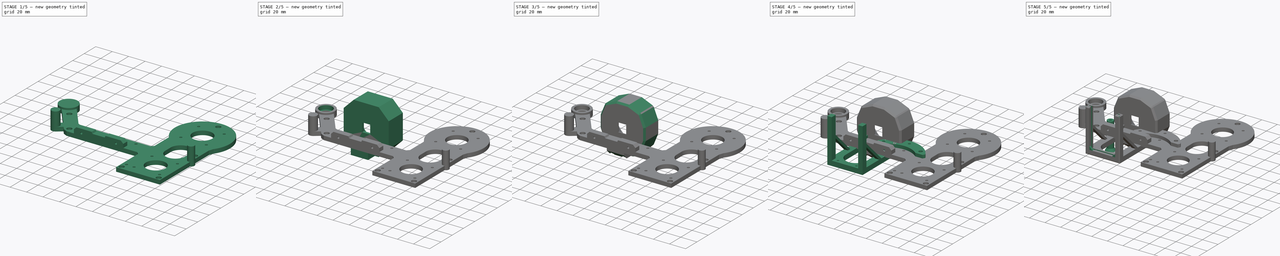
[diagram: build sequence overview — one tinted view per stage of 5, left to right]
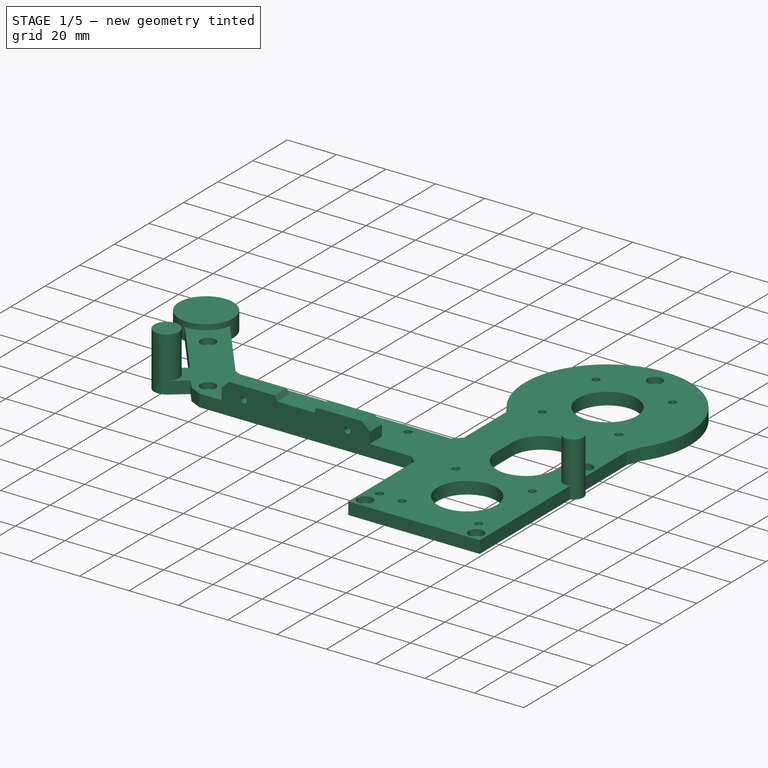
[diagram: stage 1 of 5 — iso view after this stage's code; geometry added in this stage tinted green]
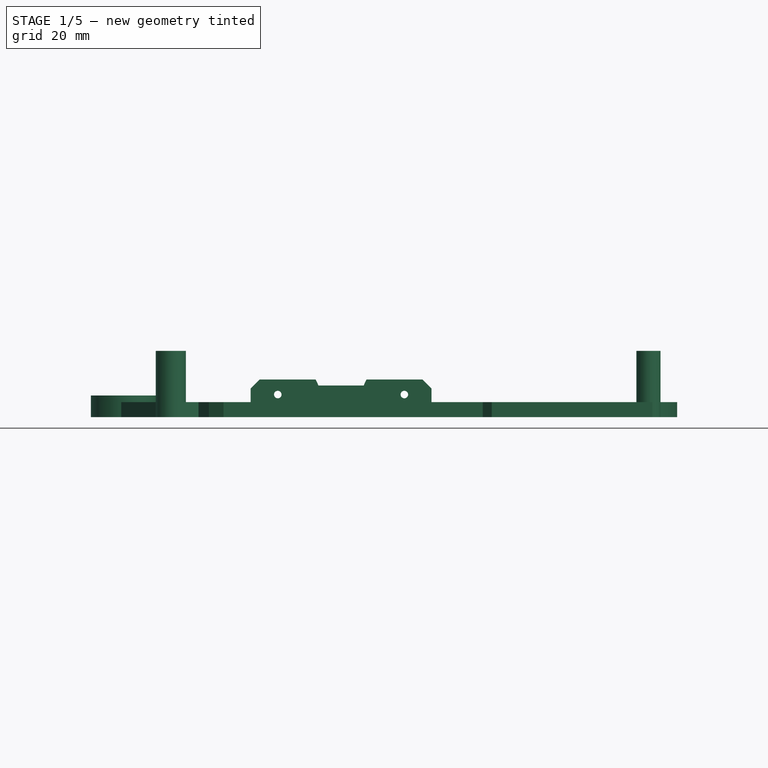
[diagram: stage 1 of 5 — front view after this stage's code; geometry added in this stage tinted green]
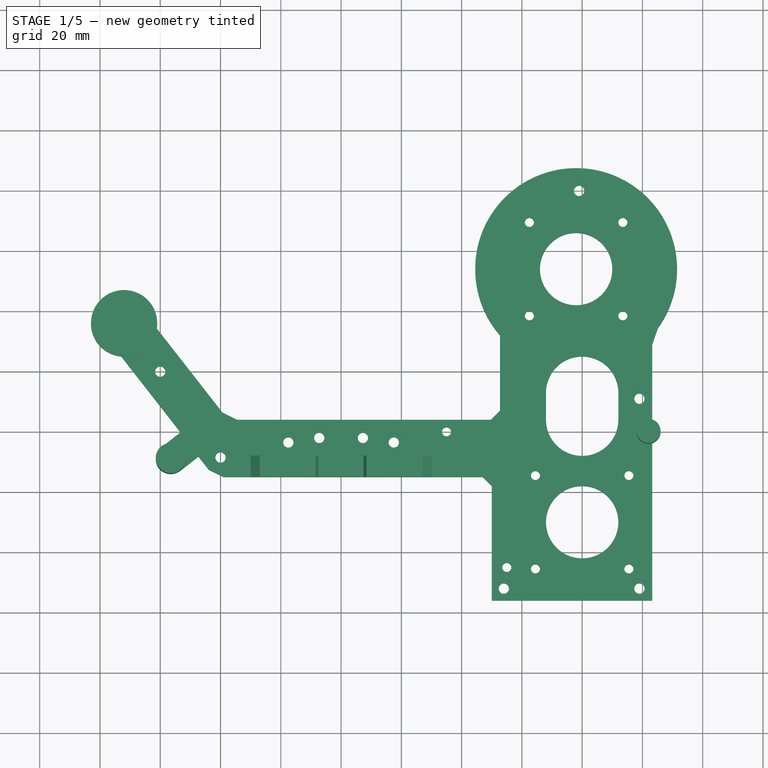
[diagram: stage 1 of 5 — top view after this stage's code; geometry added in this stage tinted green]
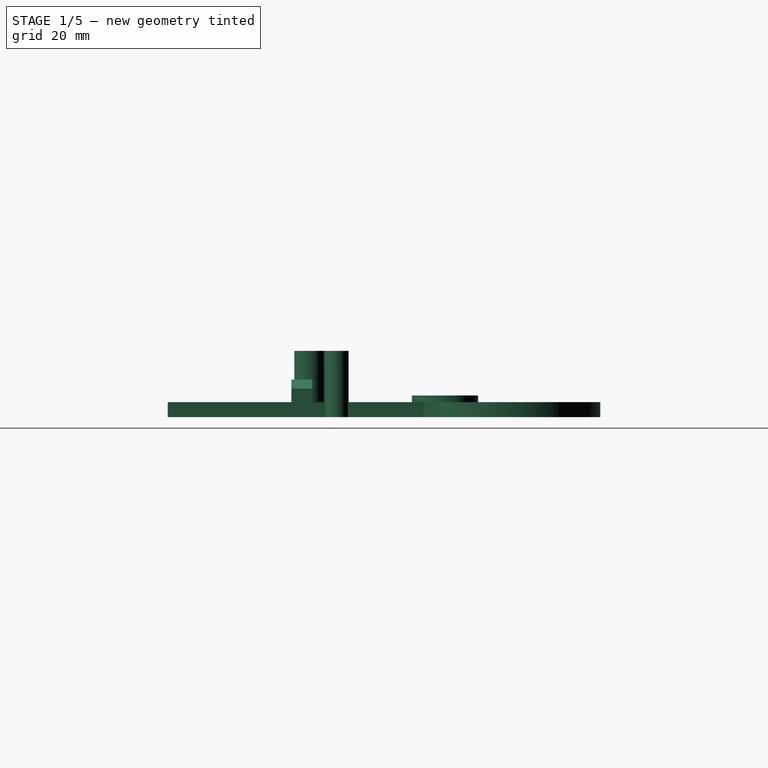
[diagram: stage 1 of 5 — right view after this stage's code; geometry added in this stage tinted green]
FCSTD DOCUMENT  (FreeCAD 2021.1015R24301 +4280 (Git))
Label: BackPlate
License: All rights reserved
LicenseURL: http://en.wikipedia.org/wiki/All_rights_reserved
objects: Sketcher::SketchObject×28, PartDesign::Pad×14, PartDesign::Chamfer×9, PartDesign::Pocket×8, PartDesign::Hole×6, PartDesign::Body×5
note: 144 computed .brp shape members not serialized (recipe doc carries the construction recipe); baked Part::Feature solids carry a one-line shape summary decoded from their .brp

FEATURE [Sketcher::SketchObject] Sketch
  FullyConstrained = false
  sketch-geometry (56):
    g0: LineSegment StartX=103.264 StartY=32 StartZ=0 EndX=103.264 EndY=-56 EndZ=0
    g1: LineSegment StartX=103.264 StartY=-56 StartZ=0 EndX=50 EndY=-56 EndZ=0
    g2: LineSegment [constr] StartX=62.5 StartY=69.5 StartZ=0 EndX=93.5 EndY=69.5 EndZ=0
    g3: LineSegment [constr] StartX=93.5 StartY=69.5 StartZ=0 EndX=93.5 EndY=38.5 EndZ=0
    g4: LineSegment [constr] StartX=93.5 StartY=38.5 StartZ=0 EndX=62.5 EndY=38.5 EndZ=0
    g5: LineSegment [constr] StartX=62.5 StartY=38.5 StartZ=0 EndX=62.5 EndY=69.5 EndZ=0
    g6: LineSegment [constr] StartX=-30 StartY=-15 StartZ=0 EndX=30 EndY=-15 EndZ=0
    g7: LineSegment [constr] StartX=30 StartY=-15 StartZ=0 EndX=30 EndY=-19 EndZ=0
    g8: LineSegment [constr] StartX=30 StartY=-19 StartZ=0 EndX=-30 EndY=-19 EndZ=0
    g9: LineSegment [constr] StartX=-30 StartY=-19 StartZ=0 EndX=-30 EndY=-15 EndZ=0
    g10: Circle [constr] CenterX=-72 CenterY=36 CenterZ=0 NormalX=0 NormalY=0 NormalZ=1 AngleXU=0 Radius=41.25
    g11: Circle [constr] CenterX=78 CenterY=54 CenterZ=0 NormalX=0 NormalY=0 NormalZ=1 AngleXU=0 Radius=41.25
    g12: Circle CenterX=-72 CenterY=36 CenterZ=0 NormalX=0 NormalY=0 NormalZ=1 AngleXU=0 Radius=6
    g13: Circle CenterX=78 CenterY=54 CenterZ=0 NormalX=0 NormalY=0 NormalZ=1 AngleXU=0 Radius=12
    g14: LineSegment [constr] StartX=56 StartY=32 StartZ=0 EndX=100 EndY=32 EndZ=0
    g15: LineSegment [constr] StartX=100 StartY=32 StartZ=0 EndX=100 EndY=76 EndZ=0
    g16: LineSegment [constr] StartX=100 StartY=76 StartZ=0 EndX=56 EndY=76 EndZ=0
    g17: LineSegment [constr] StartX=56 StartY=76 StartZ=0 EndX=56 EndY=32 EndZ=0
    g18: Circle CenterX=62.5 CenterY=69.5 CenterZ=0 NormalX=0 NormalY=0 NormalZ=1 AngleXU=0 Radius=1.5
    g19: Circle CenterX=93.5 CenterY=69.5 CenterZ=0 NormalX=0 NormalY=0 NormalZ=1 AngleXU=0 Radius=1.5
    g20: Circle CenterX=93.5 CenterY=38.5 CenterZ=0 NormalX=0 NormalY=0 NormalZ=1 AngleXU=0 Radius=1.5
    g21: Circle CenterX=62.5 CenterY=38.5 CenterZ=0 NormalX=0 NormalY=0 NormalZ=1 AngleXU=0 Radius=1.5
    g22: LineSegment [constr] StartX=58 StartY=-8 StartZ=0 EndX=102 EndY=-8 EndZ=0
    g23: LineSegment [constr] StartX=102 StartY=-8 StartZ=0 EndX=102 EndY=-52 EndZ=0
    g24: LineSegment [constr] StartX=102 StartY=-52 StartZ=0 EndX=58 EndY=-52 EndZ=0
    g25: LineSegment [constr] StartX=58 StartY=-52 StartZ=0 EndX=58 EndY=-8 EndZ=0
    g26: LineSegment [constr] StartX=64.5 StartY=-14.5 StartZ=0 EndX=95.5 EndY=-14.5 EndZ=0
    g27: LineSegment [constr] StartX=95.5 StartY=-14.5 StartZ=0 EndX=95.5 EndY=-45.5 EndZ=0
    g28: LineSegment [constr] StartX=95.5 StartY=-45.5 StartZ=0 EndX=64.5 EndY=-45.5 EndZ=0
    g29: LineSegment [constr] StartX=64.5 StartY=-45.5 StartZ=0 EndX=64.5 EndY=-14.5 EndZ=0
    g30: Circle CenterX=80 CenterY=-30 CenterZ=0 NormalX=0 NormalY=0 NormalZ=1 AngleXU=0 Radius=12
    g31: Circle CenterX=64.5 CenterY=-14.5 CenterZ=0 NormalX=0 NormalY=0 NormalZ=1 AngleXU=0 Radius=1.5
    g32: Circle CenterX=95.5 CenterY=-14.5 CenterZ=0 NormalX=0 NormalY=0 NormalZ=1 AngleXU=0 Radius=1.5
    g33: Circle CenterX=64.5 CenterY=-45.5 CenterZ=0 NormalX=0 NormalY=0 NormalZ=1 AngleXU=0 Radius=1.5
    g34: Circle CenterX=95.5 CenterY=-45.5 CenterZ=0 NormalX=0 NormalY=0 NormalZ=1 AngleXU=0 Radius=1.5
    g35: Circle [constr] CenterX=79.5667 CenterY=-6.23 CenterZ=0 NormalX=0 NormalY=0 NormalZ=1 AngleXU=0 Radius=12
    g36: LineSegment StartX=50 StartY=-56 StartZ=0 EndX=50 EndY=-15 EndZ=0
    g37: LineSegment StartX=50 StartY=-15 StartZ=0 EndX=-42 EndY=-15 EndZ=0
    g38: ArcOfCircle CenterX=-72 CenterY=36 CenterZ=0 NormalX=0 NormalY=0 NormalZ=1 AngleXU=0 Radius=11 StartAngle=6.12586 EndAngle=10.9086
    g39: ArcOfCircle CenterX=78 CenterY=54 CenterZ=0 NormalX=0 NormalY=0 NormalZ=1 AngleXU=0 Radius=33.5 StartAngle=5.56673 EndAngle=10.1412
    g40: LineSegment StartX=-37.4812 StartY=4 StartZ=0 EndX=-61.1359 EndY=34.2765 EndZ=0
    g41: LineSegment StartX=52.7364 StartY=32 StartZ=0 EndX=52.7364 EndY=4 EndZ=0
    g42: LineSegment StartX=-37.4812 StartY=4 StartZ=0 EndX=52.7364 EndY=4 EndZ=0
    g43: LineSegment [constr] StartX=79.5667 StartY=-6.23 StartZ=0 EndX=35 EndY=0 EndZ=0
    g44: Circle CenterX=35 CenterY=0 CenterZ=0 NormalX=0 NormalY=0 NormalZ=1 AngleXU=0 Radius=1.5
    g45: Circle CenterX=55 CenterY=-45 CenterZ=0 NormalX=0 NormalY=0 NormalZ=1 AngleXU=0 Radius=1.5
    g46: LineSegment [constr] StartX=-72.956 StartY=25.0416 StartZ=0 EndX=-61.1359 EndY=34.2765 EndZ=0
    g47: ArcOfCircle CenterX=80 CenterY=13.0045 CenterZ=0 NormalX=0 NormalY=0 NormalZ=1 AngleXU=0 Radius=12 StartAngle=2e-16 EndAngle=3.14159
    g48: ArcOfCircle CenterX=80 CenterY=4.00453 CenterZ=0 NormalX=0 NormalY=0 NormalZ=1 AngleXU=0 Radius=12 StartAngle=3.14159 EndAngle=6.28319
    g49: LineSegment StartX=68 StartY=13.0045 StartZ=0 EndX=68 EndY=4.00453 EndZ=0
    g50: LineSegment StartX=92 StartY=13.0045 StartZ=0 EndX=92 EndY=4.00453 EndZ=0
    g51: LineSegment StartX=-72.956 StartY=25.0416 StartZ=0 EndX=-53.2548 EndY=-0.174722 EndZ=0
    g52: LineSegment StartX=-42 StartY=-15 StartZ=0 EndX=-47.3039 EndY=-8.21129 EndZ=0
    g53: LineSegment StartX=-47.3039 StartY=-8.21129 StartZ=0 EndX=-53.214 EndY=-12.8288 EndZ=0
    g54: LineSegment StartX=-59.1649 StartY=-4.79218 StartZ=0 EndX=-53.2548 EndY=-0.174722 EndZ=0
    g55: ArcOfCircle CenterX=-56.1894 CenterY=-8.81046 CenterZ=0 NormalX=0 NormalY=0 NormalZ=1 AngleXU=0 Radius=5 StartAngle=2.20818 EndAngle=5.34977
  constraints (149):
    c: Coincident(g0,g1)
    c: Horizontal(g1)
    c: Vertical(g0)
    c: Coincident(g2,g3)
    c: Coincident(g3,g4)
    c: Coincident(g4,g5)
    c: Coincident(g5,g2)
    c: Horizontal(g2)
    c: Horizontal(g4)
    c: Vertical(g3)
    c: Vertical(g5)
    c: DistanceX(g2,g2) = 31
    c: Equal(g2,g3)
    c: Coincident(g6,g7)
    c: Coincident(g7,g8)
    c: Coincident(g8,g9)
    c: Coincident(g9,g6)
    c: Horizontal(g6)
    c: Vertical(g7)
    c: Vertical(g9)
    c: DistanceX(g6,g6) = 60
    c: DistanceY(g7,g7) = 4
    c: Diameter(g10) = 82.5
    c: Equal(g10,g11) = 85
    c: Symmetric(g4,g2,g11)
    c: Coincident(g12,g10)
    c: Diameter(g12) = 12
    c: Coincident(g13,g11)
    c: Diameter(g13) = 24
    c: Symmetric(g8,g7,g-2)
    c: Coincident(g14,g15)
    c: Coincident(g15,g16)
    c: Coincident(g16,g17)
    c: Coincident(g17,g14)
    c: Horizontal(g14)
    c: Horizontal(g16)
    c: Vertical(g15)
    c: Vertical(g17)
    c: Symmetric(g14,g15,g11)
    c: DistanceY(g15,g15) = 44
    c: Equal(g16,g15)
    c: Coincident(g18,g2)
    c: Coincident(g19,g2)
    c: Coincident(g20,g3)
    c: Coincident(g21,g4)
    c: Diameter(g18) = 3
    c: Equal(g18,g21)
    c: Equal(g21,g20)
    c: Coincident(g22,g23)
    c: Coincident(g23,g24)
    c: Coincident(g24,g25)
    c: Coincident(g25,g22)
    c: Horizontal(g22)
    c: Horizontal(g24)
    c: Vertical(g23)
    c: Vertical(g25)
    c: Coincident(g26,g27)
    c: Coincident(g27,g28)
    c: Coincident(g28,g29)
    c: Coincident(g29,g26)
    c: Horizontal(g26)
    c: Horizontal(g28)
    c: Vertical(g27)
    c: Vertical(g29)
    c: Diameter(g30) = 24
    c: Symmetric(g27,g26,g30)
    c: Symmetric(g22,g23,g30)
    c: DistanceY(g23,g23) = 44
    c: Equal(g22,g23)
    c: DistanceX(g26,g26) = 31
    c: Equal(g29,g26)
    c: Coincident(g31,g26)
    c: Coincident(g32,g26)
    c: Coincident(g33,g28)
    c: Coincident(g34,g27)
    c: Diameter(g31) = 3
    c: Equal(g31,g32)
    c: Equal(g32,g34)
    c: Equal(g34,g33)
    c: DistanceX(g-1,g30) = 80
    c: Diameter(g35) = 24
    c: Coincident(g36,g1)
    c: Vertical(g36)
    c: Coincident(g37,g36)
    c: Horizontal(g37)
    c: Coincident(g38,g10)
    c: Coincident(g39,g11)
    c: Coincident(g40,g38)
    c: DistanceY(g-1,g38) = 36
    c: DistanceX(g38,g-1) = 72
    c: Diameter(g39) = 67
    c: DistanceY(g30,g-1) = 30
    c: DistanceX(g-1,g13) = 78
    c: DistanceY(g-1,g13) = 54
    c: Coincident(g41,g39)
    c: Vertical(g41)
    c: Coincident(g42,g40)
    c: Horizontal(g42)
    c: DistanceY(g37,g-1) = 15
    c: Coincident(g43,g35)
    c: Coincident(g44,g43)
    c: Diameter(g44) = 3
    c: DistanceY(g-1,g40) = 4
    c: DistanceX(g-1,g44) = 35
    c: DistanceY(g44,g-1) = 0
    c: Diameter(g45) = 3
    c: Coincident(g46,g38)
    c: Coincident(g42,g41)
    c: DistanceY(g41,g41) = 28
    c: Coincident(g0,g39)
    c: DistanceX(g44,g45) = 20
    c: DistanceY(g45,g44) = 45
    c: Distance(g43) = 45
    c: DistanceY(g35,g44) = 6.23
    c: DistanceX(g37,g-1) = 42
    c: DistanceX(g-1,g36) = 50
    c: Horizontal(g39,g0)
    c: Equal(g19,g18)
    c: DistanceY(g6,g-1) = 15
    c: DistanceY(g1,g24) = 4
    c: Distance(g46) = 15
    c: Diameter(g38) = 22
    c: Tangent(g47,g50) = 1.5708
    c: Tangent(g47,g49) = -1.5708
    c: Tangent(g49,g48) = -1.5708
    c: Tangent(g50,g48) = 1.5708
    c: Vertical(g49)
    c: Equal(g47,g48)
    c: Vertical(g47,g30)
    c: Equal(g30,g47)
    c: Coincident(g51,g38)
    c: Coincident(g52,g37)
    c: Coincident(g53,g52)
    c: Coincident(g55,g54)
    c: Coincident(g55,g53)
    c: Coincident(g51,g54)
    c: Parallel(g51,g40)
    c: Parallel(g52,g40)
    c: Distance(g52,g51) = 10
    c: Distance(g54,g53) = 10
    c: Parallel(g53,g54)
    c: Angle(g53,g52) = 1.5708
    c: Coincident(g46,g38)
    c: Angle(g42,g40) = 2.23402
    c: Perpendicular(g51,g46)
    c: Diameter(g55) = 10
    c: Distance(g51) = 32
    c: Distance(g54) = 7.5
    c: DistanceY(g50,g50) = 9
FEATURE [PartDesign::Pad] Pad
  AddSubType = 0
  CheckUpToFaceLimits = true
  ClaimChildren = false
  Direction = (1,1,1)
  Fit = 0
  FitJoin = 0
  InnerFit = 0
  InnerFitJoin = 0
  InnerTaperAngle = 0
  InnerTaperAngleRev = 0
  Length = 5
  Length2 = 100
  Linearize = true
  NewSolid = false
  Profile = -> Sketch
  Suppress = false
  Type = 0
  _ProfileBasedVersion = 1
FEATURE [Sketcher::SketchObject] Sketch001
  AttachmentOffset = pos=(0,0,8) rot=(0,0,1;0rad)
  FullyConstrained = true
  MapMode = 5
  Placement = pos=(0,-8,-1.8e-15) rot=(1,0,0;1.5708rad)
  Support = -> [XZ_Plane]
  sketch-geometry (8):
    g0: LineSegment StartX=-30 StartY=0 StartZ=0 EndX=30 EndY=0 EndZ=0
    g1: LineSegment StartX=30 StartY=0 StartZ=0 EndX=30 EndY=12.5 EndZ=0
    g2: LineSegment StartX=-30 StartY=12.5 StartZ=0 EndX=-30 EndY=0 EndZ=0
    g3: LineSegment StartX=-30 StartY=12.5 StartZ=0 EndX=-8.43262 EndY=12.5 EndZ=0
    g4: LineSegment StartX=-8.43262 StartY=12.5 StartZ=0 EndX=-7.5 EndY=10.5 EndZ=0
    g5: LineSegment StartX=-7.5 StartY=10.5 StartZ=0 EndX=7.5 EndY=10.5 EndZ=0
    g6: LineSegment StartX=7.5 StartY=10.5 StartZ=0 EndX=8.43262 EndY=12.5 EndZ=0
    g7: LineSegment StartX=8.43262 StartY=12.5 StartZ=0 EndX=30 EndY=12.5 EndZ=0
  constraints (23):
    c: Coincident(g0,g1)
    c: Coincident(g2,g0)
    c: Vertical(g1)
    c: Vertical(g2)
    c: PointOnObject(g0,g-1)
    c: DistanceY(g2,g2) = 12.5
    c: DistanceX(g2,g1) = 60
    c: Coincident(g3,g2)
    c: Horizontal(g3)
    c: Coincident(g4,g3)
    c: Coincident(g5,g4)
    c: Horizontal(g5)
    c: Coincident(g6,g5)
    c: Coincident(g7,g6)
    c: Coincident(g7,g1)
    c: Horizontal(g7)
    c: Symmetric(g0,g0,g-2)
    c: DistanceX(g5,g5) = 15
    c: DistanceY(g4,g3) = 2
    c: Angle(g3,g4) = 2.00713
    c: Angle(g6,g7) = 2.00713
    c: Equal(g3,g7)
    c: Horizontal(g3,g6)
FEATURE [PartDesign::Pad] Pad001
  AddSubType = 0
  BaseFeature = -> Pad
  CheckUpToFaceLimits = true
  ClaimChildren = false
  Direction = (1,1,1)
  Fit = 0
  FitJoin = 0
  InnerFit = 0
  InnerFitJoin = 0
  InnerTaperAngle = 0
  InnerTaperAngleRev = 0
  Length = 7
  Length2 = 100
  Linearize = true
  NewSolid = false
  Profile = -> Sketch001
  Suppress = false
  Type = 0
  _ProfileBasedVersion = 1
FEATURE [Sketcher::SketchObject] Sketch002
  AttachmentOffset = pos=(0,0,15) rot=(0,0,1;0rad)
  FullyConstrained = true
  MapMode = 5
  Placement = pos=(0,-15,-3.3e-15) rot=(1,0,0;1.5708rad)
  Support = -> [XZ_Plane]
  sketch-geometry (2):
    g0: Circle CenterX=-21 CenterY=7.5 CenterZ=0 NormalX=0 NormalY=0 NormalZ=1 AngleXU=0 Radius=1.5
    g1: Circle CenterX=21 CenterY=7.5 CenterZ=0 NormalX=0 NormalY=0 NormalZ=1 AngleXU=0 Radius=1.5
  constraints (5):
    c: Diameter(g1) = 3
    c: DistanceY(g-1,g1) = 7.5
    c: DistanceX(g0,g1) = 42
    c: Symmetric(g1,g0,g-2)
    c: Equal(g0,g1)
FEATURE [PartDesign::Hole] Hole
  AddSubType = 1
  BaseFeature = -> Pad001
  ClaimChildren = false
  CustomThreadClearance = 0
  Depth = 10
  DepthType = 0
  Diameter = 2.5
  DrillForDepth = false
  DrillPoint = 0
  DrillPointAngle = 118
  Fit = 0
  FitJoin = 0
  HoleCutCountersinkAngle = 90
  HoleCutCustomValues = false
  HoleCutDepth = 0
  HoleCutDiameter = 6.1
  HoleCutType = 0
  InnerFit = 0
  InnerFitJoin = 0
  ModelThread = false
  NewSolid = false
  Profile = -> Sketch002
  Suppress = false
  Tapered = false
  TaperedAngle = 90
  ThreadClass = 0
  ThreadDepth = 10
  ThreadDepthType = 0
  ThreadDirection = 0
  ThreadFit = 0
  ThreadSize = 9
  ThreadType = 1
  Threaded = true
  UseCustomThreadClearance = false
  _ProfileBasedVersion = 1
FEATURE [PartDesign::Chamfer] Chamfer
  AddSubType = 0
  Angle = 45
  Base = -> Hole [Edge106,Edge79,Edge1,Edge117,Edge75,Edge87,Edge76]
  BaseFeature = -> Hole
  ChamferType = 0
  FlipDirection = false
  NewSolid = false
  Size = 3
  Size2 = 1
  SupportTransform = false
  Suppress = false
FEATURE [Sketcher::SketchObject] Sketch007  label="M3CounterSunk"
  AttachmentOffset = pos=(0,0,13) rot=(0,0,1;0rad)
  FullyConstrained = true
  MapMode = 5
  Placement = pos=(0,0,13) rot=(0,0,1;0rad)
  Support = -> [XY_Plane]
  sketch-geometry (10):
    g0: Circle CenterX=-60 CenterY=20 CenterZ=0 NormalX=0 NormalY=0 NormalZ=1 AngleXU=0 Radius=1.5
    g1: Circle CenterX=99 CenterY=11 CenterZ=0 NormalX=0 NormalY=0 NormalZ=1 AngleXU=0 Radius=1.5
    g2: Circle CenterX=79 CenterY=80 CenterZ=0 NormalX=0 NormalY=0 NormalZ=1 AngleXU=0 Radius=1.5
    g3: Circle CenterX=99 CenterY=-52 CenterZ=0 NormalX=0 NormalY=0 NormalZ=1 AngleXU=0 Radius=1.5
    g4: Circle CenterX=-40 CenterY=-8.5 CenterZ=0 NormalX=0 NormalY=0 NormalZ=1 AngleXU=0 Radius=1.5
    g5: Circle CenterX=54 CenterY=-52 CenterZ=0 NormalX=0 NormalY=0 NormalZ=1 AngleXU=0 Radius=1.5
    g6: Circle CenterX=-17.5 CenterY=-3.5 CenterZ=0 NormalX=0 NormalY=0 NormalZ=1 AngleXU=0 Radius=1.5
    g7: Circle CenterX=17.5 CenterY=-3.5 CenterZ=0 NormalX=0 NormalY=0 NormalZ=1 AngleXU=0 Radius=1.5
    g8: Circle CenterX=-7.25 CenterY=-2 CenterZ=0 NormalX=0 NormalY=0 NormalZ=1 AngleXU=0 Radius=1.5
    g9: Circle CenterX=7.25 CenterY=-2 CenterZ=0 NormalX=0 NormalY=0 NormalZ=1 AngleXU=0 Radius=1.5
  constraints (28):
    c: Vertical(g3,g1)
    c: Diameter(g3) = 3
    c: Equal(g3,g1)
    c: Equal(g1,g5)
    c: Equal(g5,g4)
    c: Equal(g4,g0)
    c: Equal(g0,g2)
    c: DistanceX(g-1,g1) = 99
    c: Horizontal(g5,g3)
    c: DistanceY(g5,g-1) = 52
    c: DistanceX(g5,g3) = 45
    c: Equal(g6,g7)
    c: Equal(g7,g4)
    c: DistanceX(g6,g7) = 35
    c: Symmetric(g7,g6,g-2)
    c: DistanceY(g7,g-1) = 3.5
    c: DistanceX(g0,g-1) = 60
    c: DistanceY(g-1,g0) = 20
    c: DistanceY(g-1,g1) = 11
    c: DistanceX(g4,g-1) = 40
    c: DistanceY(g4,g-1) = 8.5
    c: DistanceY(g1,g2) = 69
    c: DistanceX(g-1,g2) = 79
    c: DistanceX(g8,g9) = 14.5
    c: Symmetric(g9,g8,g-2)
    c: DistanceY(g9,g-1) = 2
    c: Equal(g9,g8)
    c: Equal(g8,g7)
FEATURE [PartDesign::Hole] Hole001
  AddSubType = 1
  BaseFeature = -> Chamfer
  ClaimChildren = false
  CustomThreadClearance = 0
  Depth = 15
  DepthType = 0
  Diameter = 3.4
  DrillForDepth = false
  DrillPoint = 0
  DrillPointAngle = 118
  Fit = 0
  FitJoin = 0
  HoleCutCountersinkAngle = 90
  HoleCutCustomValues = false
  HoleCutDepth = 10.5
  HoleCutDiameter = 6.1
  HoleCutType = 1
  InnerFit = 0
  InnerFitJoin = 0
  ModelThread = false
  NewSolid = false
  Profile = -> Sketch007
  Suppress = false
  Tapered = false
  TaperedAngle = 90
  ThreadClass = 0
  ThreadDepth = 15
  ThreadDepthType = 0
  ThreadDirection = 0
  ThreadFit = 0
  ThreadSize = 9
  ThreadType = 1
  Threaded = false
  UseCustomThreadClearance = false
  _ProfileBasedVersion = 1
FEATURE [Sketcher::SketchObject] Sketch013
  AttachmentOffset = pos=(0,0,5) rot=(0,0,1;0rad)
  FullyConstrained = false
  MapMode = 5
  Placement = pos=(0,0,5) rot=(0,0,1;0rad)
  Support = -> [XY_Plane]
  sketch-geometry (1):
    g0: Circle CenterX=-72 CenterY=36 CenterZ=0 NormalX=0 NormalY=0 NormalZ=1 AngleXU=0 Radius=11
  constraints (1):
    c: Diameter(g0) = 22
FEATURE [PartDesign::Pad] Pad009
  AddSubType = 0
  BaseFeature = -> Hole001
  CheckUpToFaceLimits = true
  ClaimChildren = false
  Direction = (1,1,1)
  Fit = 0
  FitJoin = 0
  InnerFit = 0
  InnerFitJoin = 0
  InnerTaperAngle = 0
  InnerTaperAngleRev = 0
  Length = 2.2
  Length2 = 100
  Linearize = true
  NewSolid = false
  Profile = -> Sketch013
  Suppress = false
  Type = 0
  _ProfileBasedVersion = 1
FEATURE [PartDesign::Body] Body001  label="Body-Arm"
  AutoGroupSolids = false
  ExportMode = 0
  Group = -> [Sketch003,Pad002,Chamfer004]
  Origin = -> Origin001
  Tip = -> Chamfer004
  _ExportChildren = -> [Pad002,Chamfer004]
  _GroupVersion = 1
FEATURE [Sketcher::SketchObject] Sketch019  label="Post"
  FullyConstrained = true
  MapMode = 5
  Support = -> [XY_Plane]
  sketch-geometry (2):
    g0: Circle CenterX=102 CenterY=0 CenterZ=0 NormalX=0 NormalY=0 NormalZ=1 AngleXU=0 Radius=4
    g1: Circle CenterX=-56.5 CenterY=-9 CenterZ=0 NormalX=0 NormalY=0 NormalZ=1 AngleXU=0 Radius=5
  constraints (6):
    c: PointOnObject(g0,g-1)
    c: Diameter(g0) = 8
    c: DistanceX(g-1,g0) = 102
    c: DistanceX(g1,g-1) = 56.5
    c: DistanceY(g1,g-1) = 9
    c: Diameter(g1) = 10
FEATURE [PartDesign::Pad] Pad012
  AddSubType = 0
  BaseFeature = -> Pad009
  CheckUpToFaceLimits = true
  ClaimChildren = false
  Direction = (1,1,1)
  Fit = 0
  FitJoin = 0
  InnerFit = 0
  InnerFitJoin = 0
  InnerTaperAngle = 0
  InnerTaperAngleRev = 0
  Length = 22
  Length2 = 100
  Linearize = true
  NewSolid = false
  Profile = -> Sketch019
  Suppress = false
  Type = 0
  _ProfileBasedVersion = 1
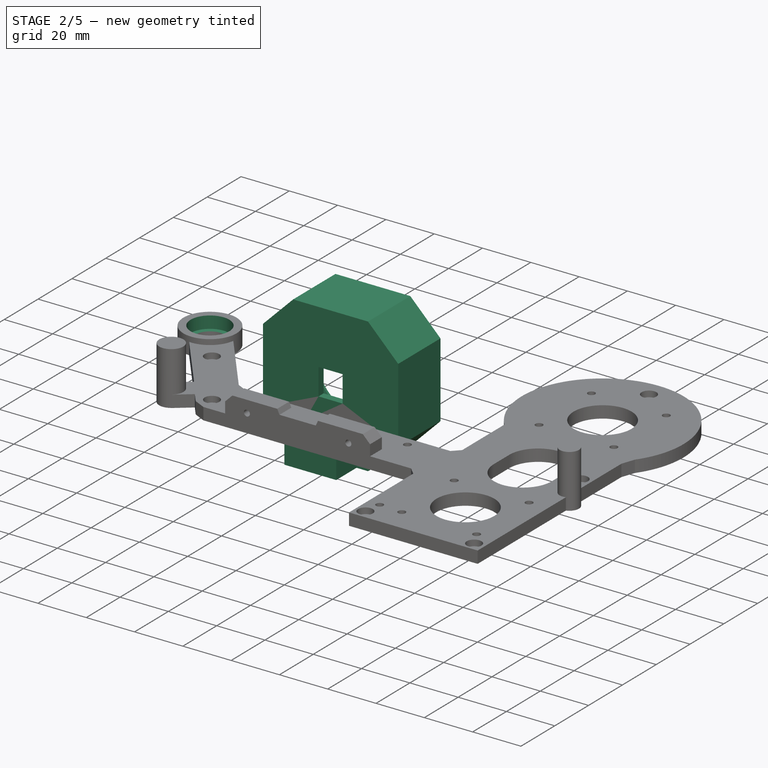
[diagram: stage 2 of 5 — iso view after this stage's code; geometry added in this stage tinted green]
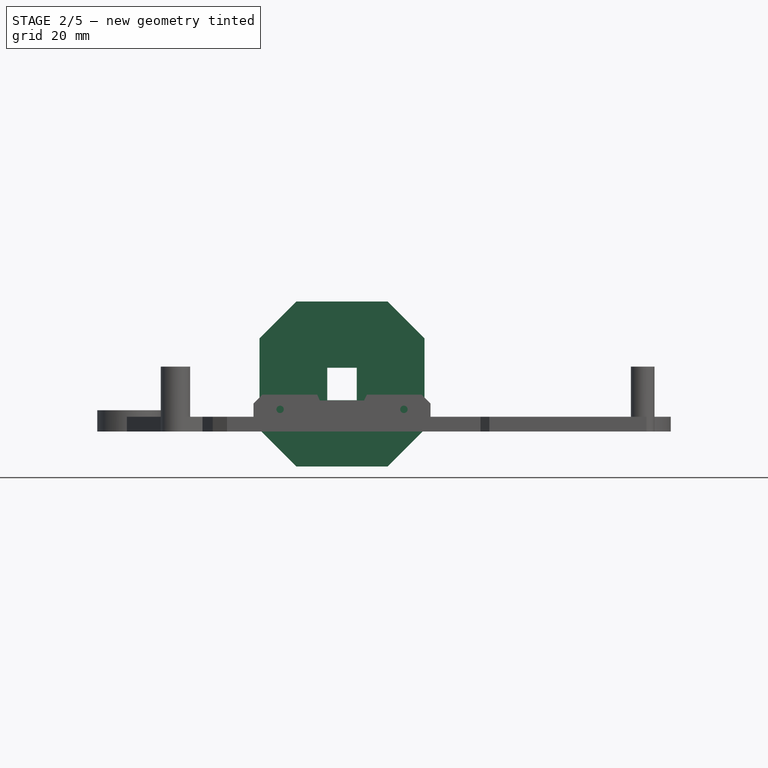
[diagram: stage 2 of 5 — front view after this stage's code; geometry added in this stage tinted green]
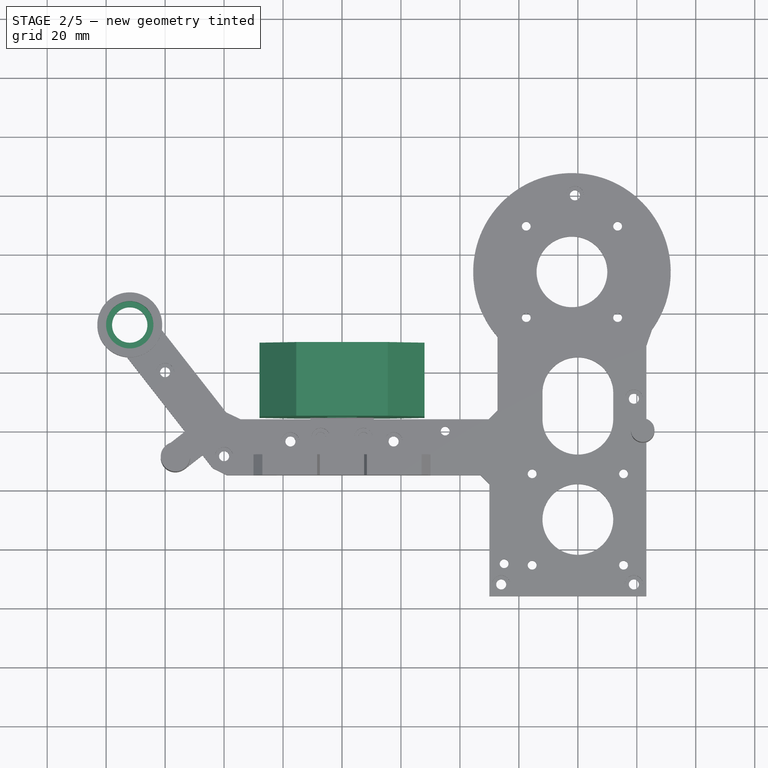
[diagram: stage 2 of 5 — top view after this stage's code; geometry added in this stage tinted green]
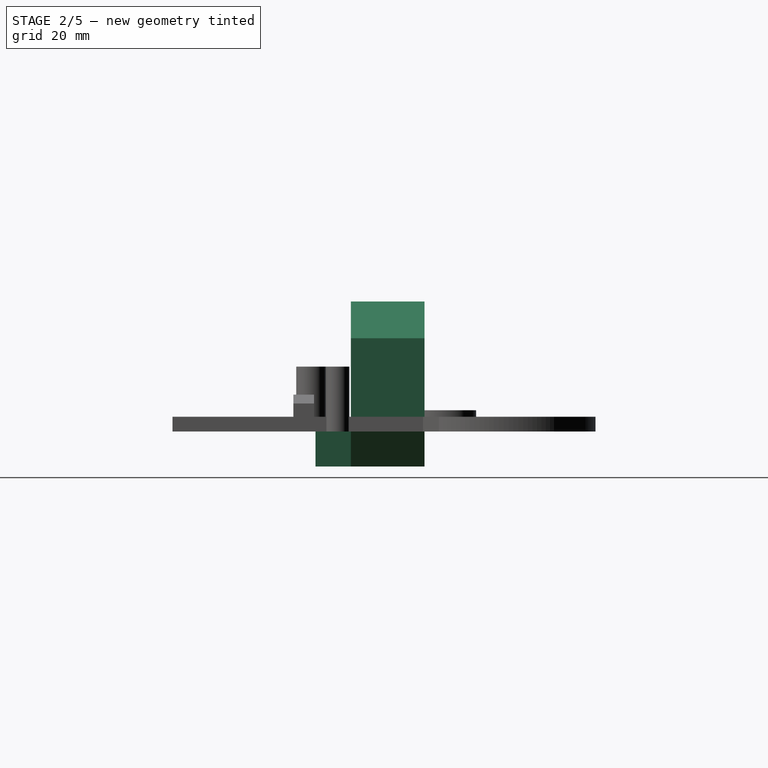
[diagram: stage 2 of 5 — right view after this stage's code; geometry added in this stage tinted green]
FEATURE [Sketcher::SketchObject] Sketch020  label="Cone"
  AttachmentOffset = pos=(0,0,-27.5) rot=(0,0,1;0rad)
  FullyConstrained = true
  MapMode = 5
  Placement = pos=(0,27.5,6.1e-15) rot=(1,0,0;1.5708rad)
  Support = -> [XZ_Plane004]
  sketch-geometry (1):
    g0: Circle CenterX=0 CenterY=16.1 CenterZ=0 NormalX=0 NormalY=0 NormalZ=1 AngleXU=0 Radius=24
  constraints (3):
    c: PointOnObject(g0,g-2)
    c: Diameter(g0) = 48
    c: DistanceY(g-1,g0) = 16.1
FEATURE [Sketcher::SketchObject] Sketch021
  AttachmentOffset = pos=(0,0,28) rot=(0,0,1;0rad)
  FullyConstrained = true
  MapMode = 5
  Placement = pos=(28,-6.2e-15,6.2e-15) rot=(0.57735,0.57735,0.57735;2.0944rad)
  Support = -> [YZ_Plane004]
  sketch-geometry (8):
    g0: LineSegment StartX=-7.5 StartY=-11.9 StartZ=0 EndX=4.5 EndY=-11.9 EndZ=0
    g1: LineSegment StartX=-7.5 StartY=-11.9 StartZ=0 EndX=-7.5 EndY=0 EndZ=0
    g2: LineSegment StartX=-7.5 StartY=0 StartZ=0 EndX=4.5 EndY=0 EndZ=0
    g3: LineSegment StartX=4.5 StartY=0 StartZ=0 EndX=4.5 EndY=44.1 EndZ=0
    g4: LineSegment StartX=4.5 StartY=44.1 StartZ=0 EndX=29.5 EndY=44.1 EndZ=0
    g5: LineSegment StartX=4.5 StartY=-11.9 StartZ=0 EndX=29.5 EndY=-11.9 EndZ=0
    g6: LineSegment StartX=29.5 StartY=-11.9 StartZ=0 EndX=29.5 EndY=44.1 EndZ=0
    g7: LineSegment [constr] StartX=0 StartY=16.1 StartZ=0 EndX=29.5 EndY=16.1 EndZ=0
  constraints (24):
    c: Horizontal(g0)
    c: Coincident(g1,g0)
    c: Vertical(g1)
    c: Coincident(g2,g1)
    c: Horizontal(g2)
    c: Coincident(g3,g2)
    c: Vertical(g3)
    c: Coincident(g4,g3)
    c: Horizontal(g4)
    c: Horizontal(g5)
    c: Coincident(g6,g5)
    c: Coincident(g6,g4)
    c: Vertical(g6)
    c: DistanceX(g2,g2) = 12
    c: DistanceX(g0,g-1) = 7.5
    c: DistanceX(g0,g0) = 12
    c: DistanceX(g4,g4) = 25
    c: DistanceY(g6,g6) = 56
    c: PointOnObject(g7,g-2)
    c: DistanceY(g-1,g7) = 16.1
    c: Symmetric(g5,g4,g7)
    c: Horizontal(g2,g-1)
    c: PointOnObject(g7,g6)
    c: Coincident(g0,g5)
FEATURE [PartDesign::Pad] Pad014
  AddSubType = 0
  CheckUpToFaceLimits = true
  ClaimChildren = false
  Direction = (1,1,1)
  Fit = 0
  FitJoin = 0
  InnerFit = 0
  InnerFitJoin = 0
  InnerTaperAngle = 0
  InnerTaperAngleRev = 0
  Length = 56
  Length2 = 100
  Linearize = true
  NewSolid = false
  Placement = pos=(0,0,0) rot=(0.57735,0.57735,0.57735;2.0944rad)
  Profile = -> Sketch021
  Reversed = true
  Suppress = false
  Type = 0
  _ProfileBasedVersion = 1
FEATURE [PartDesign::Pocket] Pocket002
  AddSubType = 1
  BaseFeature = -> Pad014
  CheckUpToFaceLimits = true
  ClaimChildren = false
  Fit = 0
  FitJoin = 0
  InnerFit = 0
  InnerFitJoin = 0
  InnerTaperAngle = 0
  InnerTaperAngleRev = 0
  Length = 20
  Length2 = 100
  Linearize = true
  NewSolid = false
  Placement = pos=(0,0,0) rot=(0.57735,0.57735,0.57735;2.0944rad)
  Profile = -> Sketch020
  Reversed = true
  Suppress = false
  TaperAngle = -30
  Type = 0
  _ProfileBasedVersion = 1
  _Version = 1
FEATURE [Sketcher::SketchObject] Sketch022  label="squarehole"
  AttachmentOffset = pos=(0,0,-4) rot=(0,0,1;0rad)
  FullyConstrained = true
  MapMode = 5
  Placement = pos=(0,4,9e-16) rot=(1,0,0;1.5708rad)
  Support = -> [XZ_Plane004]
  sketch-geometry (5):
    g0: LineSegment StartX=-5 StartY=21.6 StartZ=0 EndX=5 EndY=21.6 EndZ=0
    g1: LineSegment StartX=5 StartY=21.6 StartZ=0 EndX=5 EndY=10.6 EndZ=0
    g2: LineSegment StartX=5 StartY=10.6 StartZ=0 EndX=-5 EndY=10.6 EndZ=0
    g3: LineSegment StartX=-5 StartY=10.6 StartZ=0 EndX=-5 EndY=21.6 EndZ=0
    g4: GeomPoint [constr] X=0 Y=16.1 Z=0
  constraints (13):
    c: Coincident(g0,g1)
    c: Coincident(g1,g2)
    c: Coincident(g2,g3)
    c: Coincident(g3,g0)
    c: Horizontal(g0)
    c: Horizontal(g2)
    c: Vertical(g1)
    c: Vertical(g3)
    c: PointOnObject(g4,g-2)
    c: Symmetric(g1,g0,g4)
    c: DistanceY(g-1,g4) = 16.1
    c: DistanceX(g0,g0) = 10
    c: DistanceY(g1,g1) = 11
FEATURE [Sketcher::SketchObject] Sketch023
  AttachmentOffset = pos=(0,0,-29.5) rot=(0,0,1;0rad)
  FullyConstrained = true
  MapMode = 5
  Placement = pos=(0,29.5,6.6e-15) rot=(1,0,0;1.5708rad)
  Support = -> [XZ_Plane004]
  sketch-geometry (1):
    g0: Circle CenterX=0 CenterY=16.1 CenterZ=0 NormalX=0 NormalY=0 NormalZ=1 AngleXU=0 Radius=25
  constraints (3):
    c: PointOnObject(g0,g-2)
    c: DistanceY(g-1,g0) = 16.1
    c: Diameter(g0) = 50
FEATURE [PartDesign::Pocket] Pocket004
  AddSubType = 1
  BaseFeature = -> Pocket002
  CheckUpToFaceLimits = true
  ClaimChildren = false
  Fit = 0
  FitJoin = 0
  InnerFit = 0
  InnerFitJoin = 0
  InnerTaperAngle = 0
  InnerTaperAngleRev = 0
  Length = 2
  Length2 = 100
  Linearize = true
  NewSolid = false
  Placement = pos=(0,0,0) rot=(0.57735,0.57735,0.57735;2.0944rad)
  Profile = -> Sketch023
  Reversed = true
  Suppress = false
  Type = 0
  _ProfileBasedVersion = 1
  _Version = 1
FEATURE [PartDesign::Pocket] Pocket003
  AddSubType = 1
  BaseFeature = -> Pocket004
  CheckUpToFaceLimits = true
  ClaimChildren = false
  Fit = 0
  FitJoin = 0
  InnerFit = 0
  InnerFitJoin = 0
  InnerTaperAngle = 0
  InnerTaperAngleRev = 0
  Length = 20
  Length2 = 100
  Linearize = true
  NewSolid = false
  Placement = pos=(0,0,0) rot=(0.57735,0.57735,0.57735;2.0944rad)
  Profile = -> Sketch022
  Suppress = false
  Type = 0
  _ProfileBasedVersion = 1
  _Version = 1
FEATURE [Sketcher::SketchObject] Sketch024
  AttachmentOffset = pos=(0,0,-30) rot=(0,0,1;0rad)
  FullyConstrained = true
  MapMode = 5
  Placement = pos=(0,30,6.7e-15) rot=(1,0,0;1.5708rad)
  Support = -> [XZ_Plane004]
  sketch-geometry (7):
    g0: Circle [constr] CenterX=0 CenterY=16.1 CenterZ=0 NormalX=0 NormalY=0 NormalZ=1 AngleXU=0 Radius=27.75
    g1: Circle CenterX=-19.6222 CenterY=35.7222 CenterZ=0 NormalX=0 NormalY=0 NormalZ=1 AngleXU=0 Radius=1.75
    g2: Circle CenterX=-19.6222 CenterY=-3.5222 CenterZ=0 NormalX=0 NormalY=0 NormalZ=1 AngleXU=0 Radius=1.75
    g3: Circle CenterX=19.6222 CenterY=35.7222 CenterZ=0 NormalX=0 NormalY=0 NormalZ=1 AngleXU=0 Radius=1.75
    g4: Circle CenterX=19.6222 CenterY=-3.5222 CenterZ=0 NormalX=0 NormalY=0 NormalZ=1 AngleXU=0 Radius=1.75
    g5: LineSegment [constr] StartX=19.6222 StartY=35.7222 StartZ=0 EndX=-19.6222 EndY=-3.5222 EndZ=0
    g6: LineSegment [constr] StartX=19.6222 StartY=-3.5222 StartZ=0 EndX=-19.6222 EndY=35.7222 EndZ=0
  constraints (19):
    c: PointOnObject(g0,g-2)
    c: DistanceY(g-1,g0) = 16.1
    c: Diameter(g0) = 55.5
    c: PointOnObject(g1,g0)
    c: PointOnObject(g2,g0)
    c: PointOnObject(g3,g0)
    c: PointOnObject(g4,g0)
    c: Equal(g4,g2)
    c: Equal(g2,g1)
    c: Equal(g1,g3)
    c: Diameter(g1) = 3.5
    c: Coincident(g5,g3)
    c: Coincident(g5,g2)
    c: Coincident(g6,g4)
    c: Coincident(g6,g1)
    c: Perpendicular(g6,g5)
    c: Equal(g5,g6)
    c: Vertical(g2,g1)
    c: Horizontal(g2,g4)
FEATURE [PartDesign::Hole] Hole004
  AddSubType = 1
  BaseFeature = -> Pocket003
  ClaimChildren = false
  CustomThreadClearance = 0
  Depth = 12
  DepthType = 0
  Diameter = 2.5
  DrillForDepth = false
  DrillPoint = 0
  DrillPointAngle = 118
  Fit = 0
  FitJoin = 0
  HoleCutCountersinkAngle = 90
  HoleCutCustomValues = false
  HoleCutDepth = 0
  HoleCutDiameter = 6.1
  HoleCutType = 0
  InnerFit = 0
  InnerFitJoin = 0
  ModelThread = false
  NewSolid = false
  Placement = pos=(0,0,0) rot=(0.57735,0.57735,0.57735;2.0944rad)
  Profile = -> Sketch024
  Reversed = true
  Suppress = false
  Tapered = false
  TaperedAngle = 90
  ThreadClass = 0
  ThreadDepth = 12
  ThreadDepthType = 0
  ThreadDirection = 0
  ThreadFit = 0
  ThreadSize = 9
  ThreadType = 1
  Threaded = true
  UseCustomThreadClearance = false
  _ProfileBasedVersion = 1
FEATURE [Sketcher::SketchObject] Sketch025  label="M3"
  AttachmentOffset = pos=(0,0,6) rot=(0,0,1;0rad)
  FullyConstrained = true
  MapMode = 5
  Placement = pos=(0,0,6) rot=(0,0,1;0rad)
  Support = -> [XY_Plane004]
  sketch-geometry (2):
    g0: Circle CenterX=-7.25 CenterY=-2 CenterZ=0 NormalX=0 NormalY=0 NormalZ=1 AngleXU=0 Radius=1.75
    g1: Circle CenterX=7.25 CenterY=-2 CenterZ=0 NormalX=0 NormalY=0 NormalZ=1 AngleXU=0 Radius=1.75
  constraints (5):
    c: Equal(g0,g1)
    c: Diameter(g1) = 3.5
    c: Symmetric(g1,g0,g-2)
    c: DistanceX(g0,g1) = 14.5
    c: DistanceY(g1,g-1) = 2
FEATURE [Sketcher::SketchObject] Sketch026
  FullyConstrained = true
  MapMode = 5
  Support = -> [XY_Plane004]
  sketch-geometry (8):
    g0: LineSegment StartX=-10.75 StartY=-15.5 StartZ=0 EndX=-35.75 EndY=-15.5 EndZ=0
    g1: LineSegment StartX=-35.75 StartY=-15.5 StartZ=0 EndX=-35.75 EndY=4.5 EndZ=0
    g2: LineSegment StartX=-35.75 StartY=4.5 StartZ=0 EndX=-10.75 EndY=4.5 EndZ=0
    g3: LineSegment StartX=-10.75 StartY=4.5 StartZ=0 EndX=-10.75 EndY=-15.5 EndZ=0
    g4: LineSegment StartX=10.75 StartY=4.5 StartZ=0 EndX=35.75 EndY=4.5 EndZ=0
    g5: LineSegment StartX=35.75 StartY=4.5 StartZ=0 EndX=35.75 EndY=-15.5 EndZ=0
    g6: LineSegment StartX=35.75 StartY=-15.5 StartZ=0 EndX=10.75 EndY=-15.5 EndZ=0
    g7: LineSegment StartX=10.75 StartY=-15.5 StartZ=0 EndX=10.75 EndY=4.5 EndZ=0
  constraints (23):
    c: Coincident(g0,g1)
    c: Coincident(g1,g2)
    c: Coincident(g2,g3)
    c: Coincident(g3,g0)
    c: Horizontal(g0)
    c: Horizontal(g2)
    c: Vertical(g1)
    c: Vertical(g3)
    c: Coincident(g4,g5)
    c: Coincident(g5,g6)
    c: Coincident(g6,g7)
    c: Coincident(g7,g4)
    c: Horizontal(g4)
    c: Horizontal(g6)
    c: Vertical(g5)
    c: Vertical(g7)
    c: Symmetric(g2,g4,g-2)
    c: DistanceX(g2,g4) = 21.5
    c: Horizontal(g0,g6)
    c: Equal(g0,g6)
    c: DistanceX(g6,g6) = 25
    c: DistanceY(g5,g5) = 20
    c: DistanceY(g-1,g4) = 4.5
FEATURE [PartDesign::Pocket] Pocket005
  AddSubType = 1
  BaseFeature = -> Hole004
  CheckUpToFaceLimits = true
  ClaimChildren = false
  Fit = 0
  FitJoin = 0
  InnerFit = 0
  InnerFitJoin = 0
  InnerTaperAngle = 0
  InnerTaperAngleRev = 0
  Length = 18
  Length2 = 100
  Linearize = true
  NewSolid = false
  Placement = pos=(0,0,0) rot=(0.57735,0.57735,0.57735;2.0944rad)
  Profile = -> Sketch026
  Suppress = false
  Type = 0
  _ProfileBasedVersion = 1
  _Version = 1
FEATURE [PartDesign::Chamfer] Chamfer005
  AddSubType = 0
  Angle = 45
  Base = -> Pocket005 [Edge25,Edge27,Edge6,Edge5]
  BaseFeature = -> Pocket005
  ChamferType = 0
  FlipDirection = false
  NewSolid = false
  Placement = pos=(0,0,0) rot=(0.57735,0.57735,0.57735;2.0944rad)
  Size = 12.5
  Size2 = 1
  SupportTransform = false
  Suppress = false
FEATURE [PartDesign::Body] Body004  label="Body-LampMount"
  AutoGroupSolids = false
  ExportMode = 0
  Group = -> [Pad014,Sketch020,Sketch021,Pocket002,Sketch022,Sketch023,Pocket004,Pocket003,Sketch024,Hole004,Pocket005,Chamfer005,Chamfer006,Chamfer007,Sketch025,Hole005,Sketch026,Sketch027,Pocket006,Chamfer008,Chamfer009,Chamfer010]
  Origin = -> Origin004
  Tip = -> Chamfer010
  _ExportChildren = -> [Pad014,Pocket002,Pocket004,Pocket003,Hole004,Pocket005,Chamfer005,Chamfer006,Chamfer007,Hole005,Pocket006,Chamfer008,Chamfer009,Chamfer010]
  _GroupVersion = 1
FEATURE [Sketcher::SketchObject] Sketch028  label="16mmBearing"
  AttachmentOffset = pos=(0,0,7.2) rot=(0,0,1;0rad)
  FullyConstrained = true
  MapMode = 5
  Placement = pos=(0,0,7.2) rot=(0,0,1;0rad)
  Support = -> [XY_Plane]
  sketch-geometry (1):
    g0: Circle CenterX=-72 CenterY=36 CenterZ=0 NormalX=0 NormalY=0 NormalZ=1 AngleXU=0 Radius=8.025
  constraints (3):
    c: Diameter(g0) = 16.05
    c: DistanceX(g0,g-1) = 72
    c: DistanceY(g-1,g0) = 36
FEATURE [PartDesign::Pocket] Pocket007
  AddSubType = 1
  BaseFeature = -> Pad012
  CheckUpToFaceLimits = true
  ClaimChildren = false
  Fit = 0
  FitJoin = 0
  InnerFit = 0
  InnerFitJoin = 0
  InnerTaperAngle = 0
  InnerTaperAngleRev = 0
  Length = 5
  Length2 = 100
  Linearize = true
  NewSolid = false
  Profile = -> Sketch028
  Suppress = false
  Type = 0
  _ProfileBasedVersion = 1
  _Version = 1
FEATURE [PartDesign::Body] Body  label="Body-Frame"
  AutoGroupSolids = false
  ExportMode = 0
  Group = -> [Sketch,Pad,Sketch001,Pad001,Sketch002,Hole,Chamfer,Sketch007,Hole001,Sketch013,Pad009,Sketch019,Pad012,Sketch028,Pocket007]
  Origin = -> Origin
  Tip = -> Pocket007
  _ExportChildren = -> [Pad,Pad001,Hole,Chamfer,Hole001,Pad009,Pad012,Pocket007]
  _GroupVersion = 1
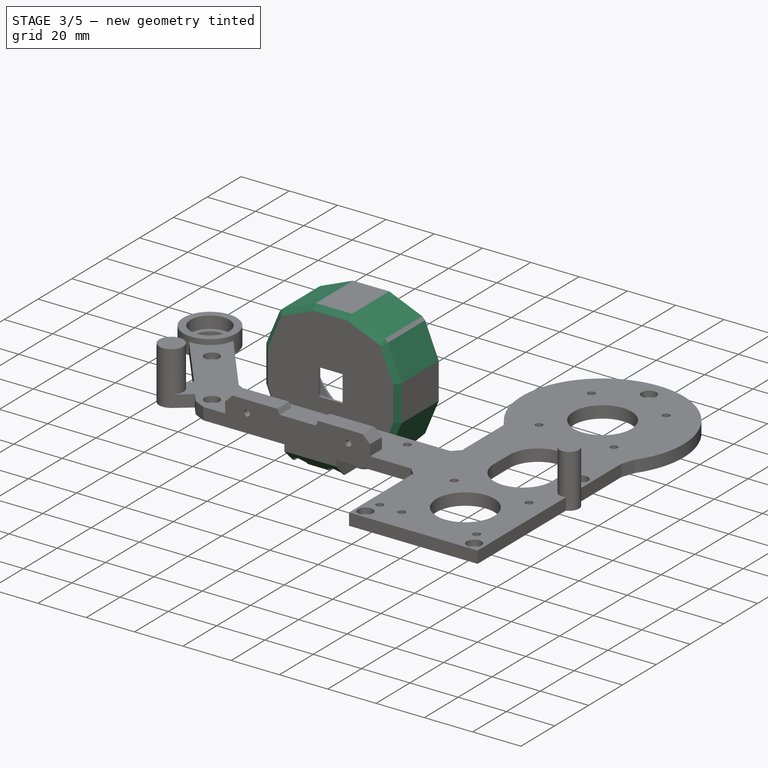
[diagram: stage 3 of 5 — iso view after this stage's code; geometry added in this stage tinted green]
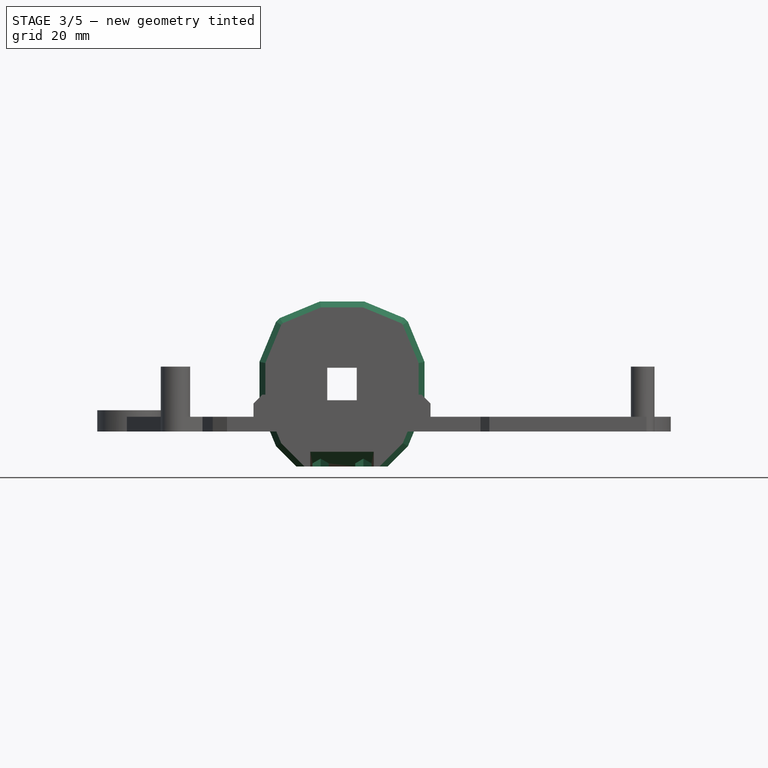
[diagram: stage 3 of 5 — front view after this stage's code; geometry added in this stage tinted green]
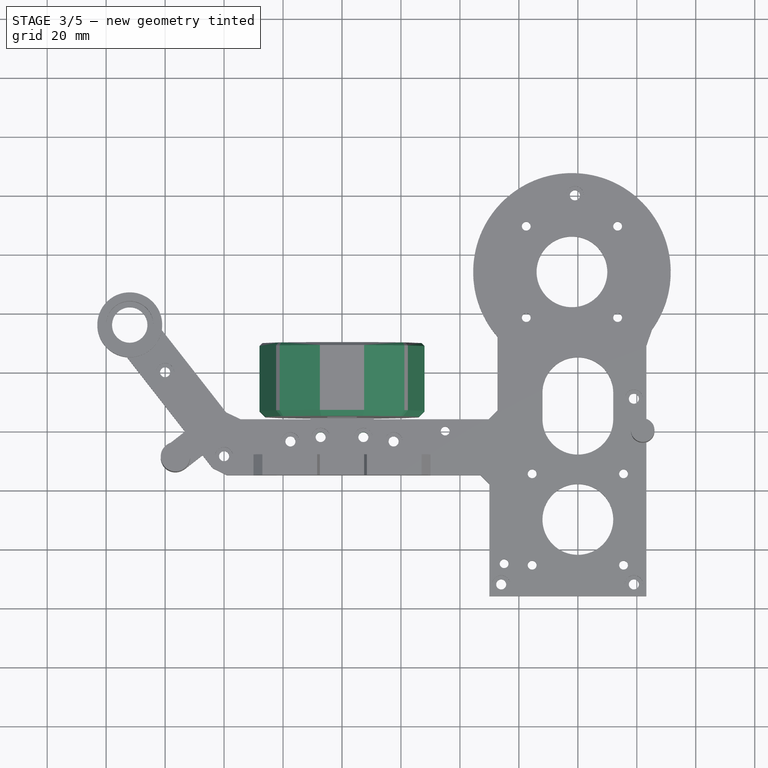
[diagram: stage 3 of 5 — top view after this stage's code; geometry added in this stage tinted green]
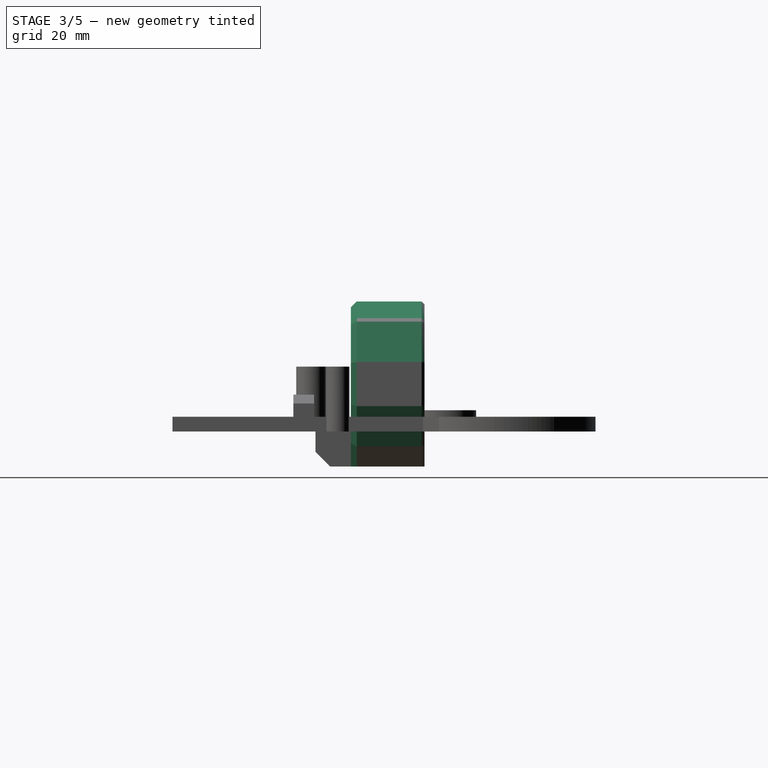
[diagram: stage 3 of 5 — right view after this stage's code; geometry added in this stage tinted green]
FEATURE [PartDesign::Chamfer] Chamfer006
  AddSubType = 0
  Angle = 45
  Base = -> Chamfer005 [Edge49,Edge44,Edge50,Edge48,Edge12,Edge31]
  BaseFeature = -> Chamfer005
  ChamferType = 0
  FlipDirection = false
  NewSolid = false
  Placement = pos=(0,0,0) rot=(0.57735,0.57735,0.57735;2.0944rad)
  Size = 8
  Size2 = 1
  SupportTransform = false
  Suppress = false
FEATURE [Sketcher::SketchObject] Sketch027  label="M3Nut"
  AttachmentOffset = pos=(0,0,-12) rot=(0,0,1;0rad)
  FullyConstrained = true
  MapMode = 5
  Placement = pos=(0,0,-12) rot=(0,0,1;0rad)
  Support = -> [XY_Plane004]
  sketch-geometry (14):
    g0: LineSegment StartX=-4.5 StartY=-3.58771 StartZ=0 EndX=-4.5 EndY=-0.412287 EndZ=0
    g1: LineSegment StartX=-4.5 StartY=-0.412287 StartZ=0 EndX=-7.25 EndY=1.17543 EndZ=0
    g2: LineSegment StartX=-7.25 StartY=1.17543 StartZ=0 EndX=-10 EndY=-0.412287 EndZ=0
    g3: LineSegment StartX=-10 StartY=-0.412287 StartZ=0 EndX=-10 EndY=-3.58771 EndZ=0
    g4: LineSegment StartX=-10 StartY=-3.58771 StartZ=0 EndX=-7.25 EndY=-5.17543 EndZ=0
    g5: LineSegment StartX=-7.25 StartY=-5.17543 StartZ=0 EndX=-4.5 EndY=-3.58771 EndZ=0
    g6: Circle [constr] CenterX=-7.25 CenterY=-2 CenterZ=0 NormalX=0 NormalY=0 NormalZ=1 AngleXU=0 Radius=3.17543
    g7: LineSegment StartX=10 StartY=-3.58771 StartZ=0 EndX=10 EndY=-0.412287 EndZ=0
    g8: LineSegment StartX=10 StartY=-0.412287 StartZ=0 EndX=7.25 EndY=1.17543 EndZ=0
    g9: LineSegment StartX=7.25 StartY=1.17543 StartZ=0 EndX=4.5 EndY=-0.412287 EndZ=0
    g10: LineSegment StartX=4.5 StartY=-0.412287 StartZ=0 EndX=4.5 EndY=-3.58771 EndZ=0
    g11: LineSegment StartX=4.5 StartY=-3.58771 StartZ=0 EndX=7.25 EndY=-5.17543 EndZ=0
    g12: LineSegment StartX=7.25 StartY=-5.17543 StartZ=0 EndX=10 EndY=-3.58771 EndZ=0
    g13: Circle [constr] CenterX=7.25 CenterY=-2 CenterZ=0 NormalX=0 NormalY=0 NormalZ=1 AngleXU=0 Radius=3.17543
  constraints (33):
    c: Coincident(g0,g1)
    c: Coincident(g1,g2)
    c: Coincident(g2,g3)
    c: Coincident(g3,g4)
    c: Coincident(g4,g5)
    c: Coincident(g5,g0)
    c: Equal(g0, g1-g5) x5
    c: PointOnObject(g0,g6)
    c: PointOnObject(g1,g6)
    c: PointOnObject(g2,g6)
    c: PointOnObject(g3,g6)
    c: PointOnObject(g4,g6)
    c: PointOnObject(g5,g6)
    c: Coincident(g7,g8)
    c: Coincident(g8,g9)
    c: Coincident(g9,g10)
    c: Coincident(g10,g11)
    c: Coincident(g11,g12)
    c: Coincident(g12,g7)
    c: Equal(g7, g8-g12) x5
    c: PointOnObject(g7,g13)
    c: PointOnObject(g8,g13)
    c: PointOnObject(g9,g13)
    c: PointOnObject(g10,g13)
    c: PointOnObject(g11,g13)
    c: PointOnObject(g12,g13)
    c: Symmetric(g6,g13,g-2)
    c: Equal(g13,g6)
    c: Vertical(g0)
    c: Vertical(g10)
    c: DistanceX(g9,g7) = 5.5
    c: DistanceX(g6,g13) = 14.5
    c: DistanceY(g13,g-1) = 2
FEATURE [PartDesign::Chamfer] Chamfer007
  AddSubType = 0
  Angle = 45
  Base = -> Chamfer006 [Edge75]
  BaseFeature = -> Chamfer006
  ChamferType = 0
  FlipDirection = false
  NewSolid = false
  Placement = pos=(0,0,0) rot=(0.57735,0.57735,0.57735;2.0944rad)
  Size = 5
  Size2 = 1
  SupportTransform = false
  Suppress = false
FEATURE [PartDesign::Hole] Hole005  label="hole_m3"
  AddSubType = 1
  BaseFeature = -> Chamfer007
  ClaimChildren = false
  CustomThreadClearance = 0
  Depth = 25
  DepthType = 0
  Diameter = 3.4
  DrillForDepth = false
  DrillPoint = 0
  DrillPointAngle = 118
  Fit = 0
  FitJoin = 0
  HoleCutCountersinkAngle = 90
  HoleCutCustomValues = false
  HoleCutDepth = 0
  HoleCutDiameter = 6.1
  HoleCutType = 0
  InnerFit = 0
  InnerFitJoin = 0
  ModelThread = false
  NewSolid = false
  Placement = pos=(0,0,0) rot=(0.57735,0.57735,0.57735;2.0944rad)
  Profile = -> Sketch025
  Suppress = false
  Tapered = false
  TaperedAngle = 90
  ThreadClass = 0
  ThreadDepth = 25
  ThreadDepthType = 0
  ThreadDirection = 0
  ThreadFit = 0
  ThreadSize = 9
  ThreadType = 1
  Threaded = false
  UseCustomThreadClearance = false
  _ProfileBasedVersion = 1
FEATURE [PartDesign::Pocket] Pocket006  label="pktM3Nut"
  AddSubType = 1
  BaseFeature = -> Hole005
  CheckUpToFaceLimits = true
  ClaimChildren = false
  Fit = 0
  FitJoin = 0
  InnerFit = 0
  InnerFitJoin = 0
  InnerTaperAngle = 0
  InnerTaperAngleRev = 0
  Length = 7
  Length2 = 100
  Linearize = true
  NewSolid = false
  Placement = pos=(0,0,0) rot=(0.57735,0.57735,0.57735;2.0944rad)
  Profile = -> Sketch027
  Reversed = true
  Suppress = false
  Type = 0
  _ProfileBasedVersion = 1
  _Version = 1
FEATURE [PartDesign::Chamfer] Chamfer008
  AddSubType = 0
  Angle = 45
  Base = -> Pocket006 [Edge124,Edge121,Edge127,Edge126]
  BaseFeature = -> Pocket006
  ChamferType = 0
  FlipDirection = false
  NewSolid = false
  Placement = pos=(0,0,0) rot=(0.57735,0.57735,0.57735;2.0944rad)
  Size = 2
  Size2 = 1
  SupportTransform = false
  Suppress = false
FEATURE [PartDesign::Chamfer] Chamfer009
  AddSubType = 0
  Angle = 45
  Base = -> Chamfer008 [Edge19,Edge14,Edge21,Edge16,Edge24,Edge23,Edge22,Edge20,Edge18,Edge36,Edge38,Edge50,Edge52]
  BaseFeature = -> Chamfer008
  ChamferType = 0
  FlipDirection = false
  NewSolid = false
  Placement = pos=(0,0,0) rot=(0.57735,0.57735,0.57735;2.0944rad)
  Size = 2
  Size2 = 1
  SupportTransform = false
  Suppress = false
FEATURE [PartDesign::Chamfer] Chamfer010
  AddSubType = 0
  Angle = 45
  Base = -> Chamfer009 [Edge98,Edge86,Edge76,Edge94,Edge136,Edge137,Edge102,Edge108,Edge106,Edge104,Edge100,Edge96,Edge91]
  BaseFeature = -> Chamfer009
  ChamferType = 0
  FlipDirection = false
  NewSolid = false
  Placement = pos=(0,0,0) rot=(0.57735,0.57735,0.57735;2.0944rad)
  Size = 1
  Size2 = 1
  SupportTransform = false
  Suppress = false
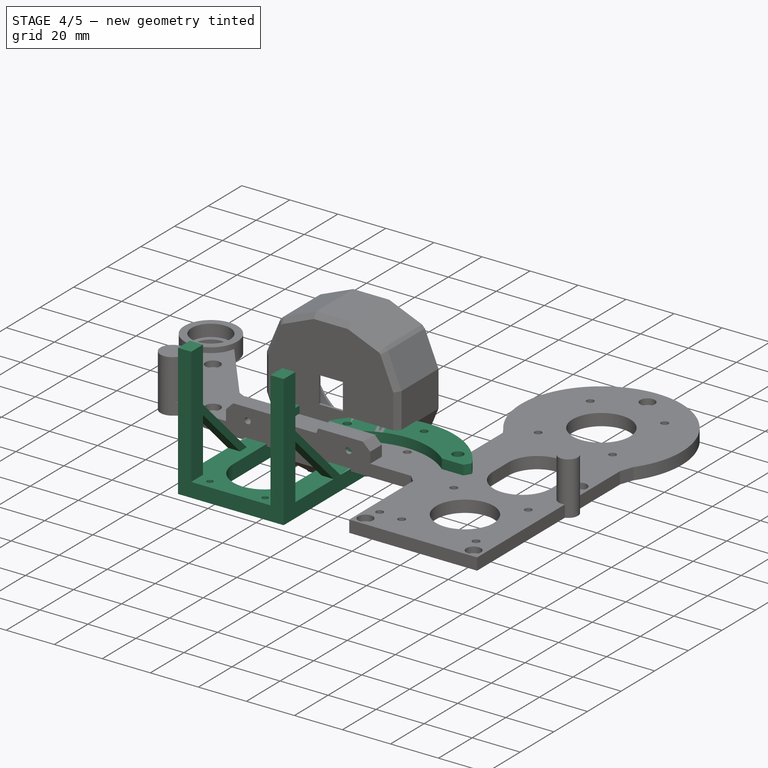
[diagram: stage 4 of 5 — iso view after this stage's code; geometry added in this stage tinted green]
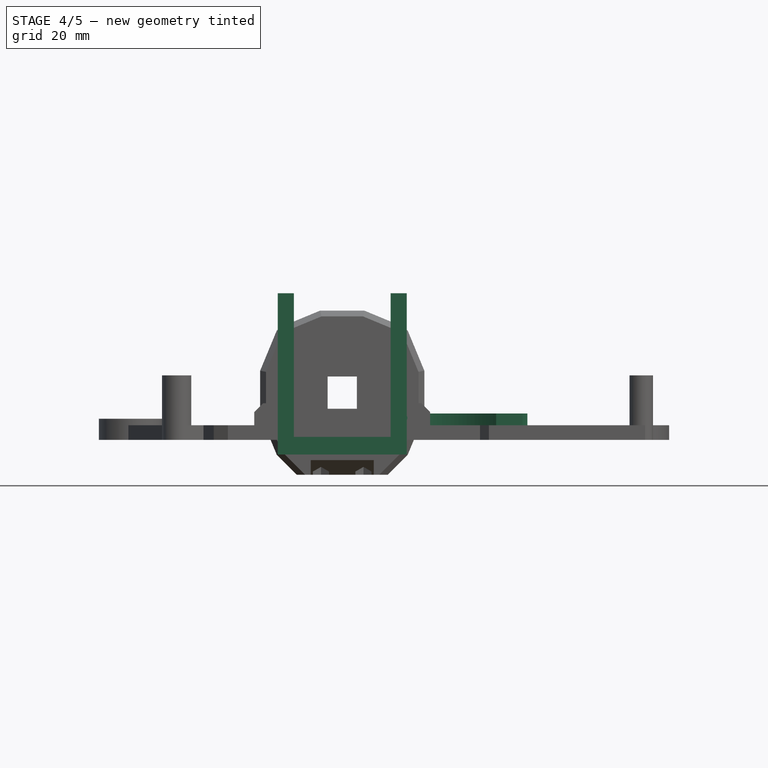
[diagram: stage 4 of 5 — front view after this stage's code; geometry added in this stage tinted green]
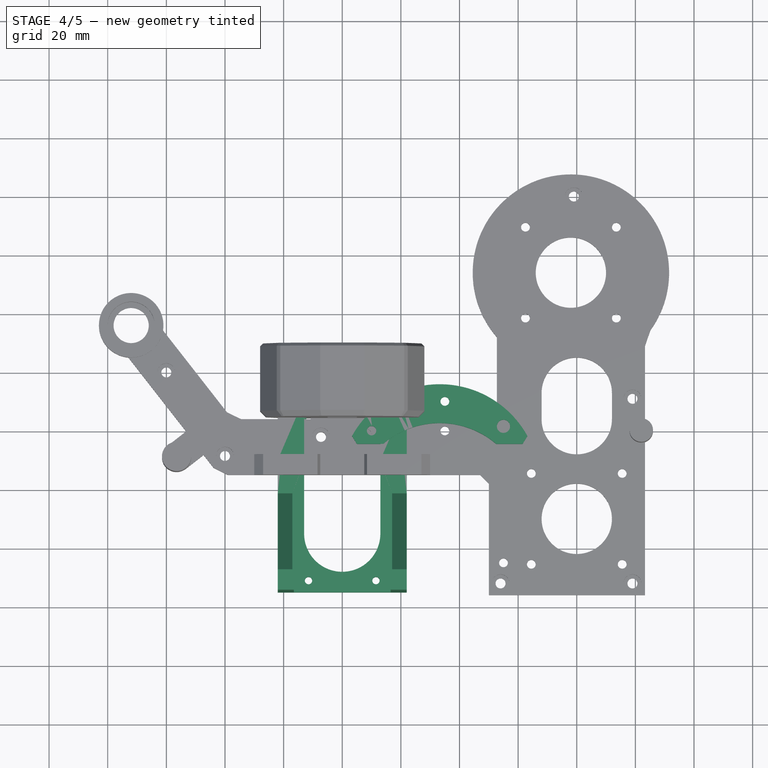
[diagram: stage 4 of 5 — top view after this stage's code; geometry added in this stage tinted green]
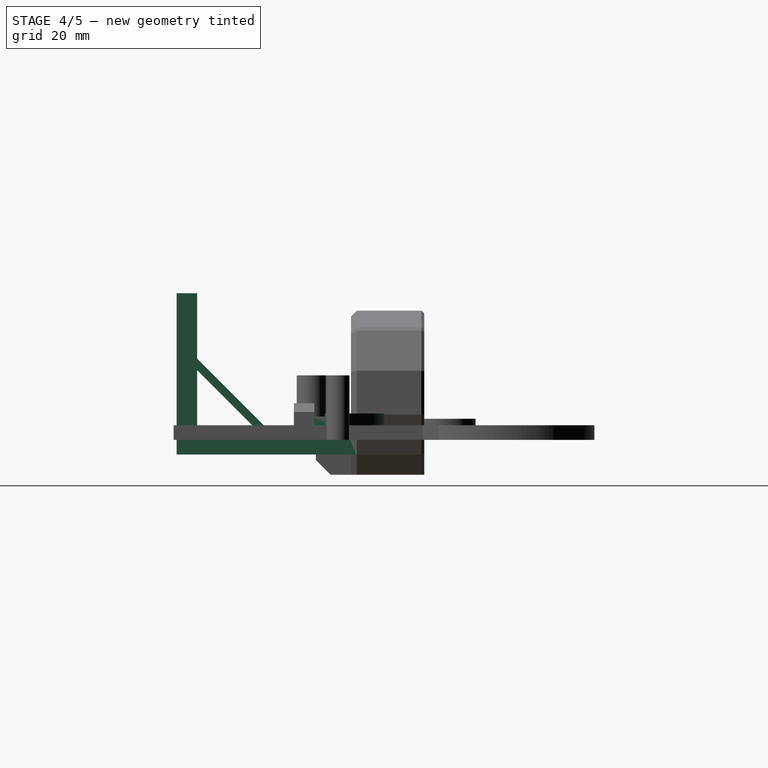
[diagram: stage 4 of 5 — right view after this stage's code; geometry added in this stage tinted green]
FEATURE [Sketcher::SketchObject] Sketch003
  AttachmentOffset = pos=(0,0,5) rot=(0,0,1;0rad)
  FullyConstrained = false
  MapMode = 5
  Placement = pos=(0,0,5) rot=(0,0,1;0rad)
  Support = -> [XY_Plane001]
  sketch-geometry (10):
    g0: Circle [constr] CenterX=55 CenterY=1.5 CenterZ=0 NormalX=0 NormalY=0 NormalZ=1 AngleXU=0 Radius=12
    g1: Circle CenterX=55 CenterY=1.5 CenterZ=0 NormalX=0 NormalY=0 NormalZ=1 AngleXU=0 Radius=2.25
    g2: Circle CenterX=10 CenterY=0 CenterZ=0 NormalX=0 NormalY=0 NormalZ=1 AngleXU=0 Radius=1.6
    g3: Circle CenterX=35 CenterY=10 CenterZ=0 NormalX=0 NormalY=0 NormalZ=1 AngleXU=0 Radius=1.5
    g4: GeomPoint [constr] X=35 Y=-10 Z=0
    g5: LineSegment [constr] StartX=35 StartY=10 StartZ=0 EndX=35 EndY=-10 EndZ=0
    g6: LineSegment StartX=2 StartY=-4.5 StartZ=0 EndX=14 EndY=-4.5 EndZ=0
    g7: LineSegment StartX=52.5 StartY=-4.5 StartZ=0 EndX=64.5 EndY=-4.5 EndZ=0
    g8: ArcOfCircle CenterX=33.25 CenterY=-27.0586 CenterZ=0 NormalX=0 NormalY=0 NormalZ=1 AngleXU=0 Radius=29.6556 StartAngle=0.864371 EndAngle=2.27722
    g9: ArcOfCircle CenterX=33.25 CenterY=-18.3056 CenterZ=0 NormalX=0 NormalY=0 NormalZ=1 AngleXU=0 Radius=34.1637 StartAngle=0.415996 EndAngle=2.7256
  constraints (27):
    c: Diameter(g0) = 24
    c: DistanceX(g-1,g0) = 55
    c: DistanceY(g-1,g0) = 1.5
    c: Coincident(g1,g0)
    c: Diameter(g1) = 4.5
    c: Diameter(g2) = 3.2
    c: DistanceX(g-1,g2) = 10
    c: DistanceY(g2,g-1) = 0
    c: Diameter(g3) = 3
    c: Coincident(g5,g3)
    c: Coincident(g5,g4)
    c: Vertical(g5)
    c: DistanceY(g5,g5) = 20
    c: DistanceY(g4,g-1) = 10
    c: Horizontal(g6)
    c: Horizontal(g7)
    c: Horizontal(g6,g7)
    c: Equal(g6,g7)
    c: Coincident(g9,g6)
    c: Coincident(g9,g7)
    c: Coincident(g6,g8)
    c: Coincident(g8,g7)
    c: DistanceX(g6,g6) = 12
    c: DistanceX(g6,g2) = 8
    c: DistanceY(g6,g2) = 4.5
    c: DistanceX(g7,g1) = 2.5
    c: DistanceX(g-1,g3) = 35
FEATURE [PartDesign::Pad] Pad002
  AddSubType = 0
  CheckUpToFaceLimits = true
  ClaimChildren = false
  Direction = (1,1,1)
  Fit = 0
  FitJoin = 0
  InnerFit = 0
  InnerFitJoin = 0
  InnerTaperAngle = 0
  InnerTaperAngleRev = 0
  Length = 4
  Length2 = 100
  Linearize = true
  NewSolid = false
  Profile = -> Sketch003
  Suppress = false
  Type = 0
  _ProfileBasedVersion = 1
FEATURE [Sketcher::SketchObject] Sketch004
  FullyConstrained = false
  Placement = pos=(0,0,-5) rot=(0,0,1;0rad)
  sketch-geometry (8):
    g0: LineSegment StartX=-22 StartY=-55 StartZ=0 EndX=-22 EndY=15.7033 EndZ=0
    g1: LineSegment StartX=22 StartY=15.7033 StartZ=0 EndX=22 EndY=-55 EndZ=0
    g2: LineSegment StartX=22 StartY=15.7033 StartZ=0 EndX=-22 EndY=15.7033 EndZ=0
    g3: LineSegment StartX=-22 StartY=-55 StartZ=0 EndX=22 EndY=-55 EndZ=0
    g4: ArcOfCircle CenterX=8e-16 CenterY=-35 CenterZ=0 NormalX=0 NormalY=0 NormalZ=1 AngleXU=0 Radius=13 StartAngle=3.14159 EndAngle=6.28319
    g5: ArcOfCircle CenterX=0 CenterY=0 CenterZ=0 NormalX=0 NormalY=0 NormalZ=1 AngleXU=0 Radius=13 StartAngle=0 EndAngle=3.14159
    g6: LineSegment StartX=13 StartY=-35 StartZ=0 EndX=13 EndY=0 EndZ=0
    g7: LineSegment StartX=-13 StartY=-35 StartZ=0 EndX=-13 EndY=0 EndZ=0
  constraints (19):
    c: Vertical(g0)
    c: Vertical(g1)
    c: DistanceX(g2,g2) = 44
    c: Coincident(g3,g0)
    c: Coincident(g3,g1)
    c: Horizontal(g3)
    c: DistanceY(g0,g-1) = 55
    c: Tangent(g4,g7) = 1.5708
    c: Tangent(g4,g6) = -1.5708
    c: Tangent(g6,g5) = -1.5708
    c: Tangent(g7,g5) = 1.5708
    c: Vertical(g6)
    c: Equal(g4,g5)
    c: DistanceX(g0,g4) = 9
    c: DistanceY(g0,g4) = 20
    c: Coincident(g0,g2)
    c: Coincident(g1,g2)
    c: Symmetric(g1,g0,g-2)
    c: Coincident(g5,g-1)
FEATURE [PartDesign::Pad] Pad003
  AddSubType = 0
  CheckUpToFaceLimits = true
  ClaimChildren = false
  Direction = (1,1,1)
  Fit = 0
  FitJoin = 0
  InnerFit = 0
  InnerFitJoin = 0
  InnerTaperAngle = 0
  InnerTaperAngleRev = 0
  Length = 6
  Length2 = 100
  Linearize = true
  NewSolid = false
  Placement = pos=(0,0,-5) rot=(0,0,1;0rad)
  Profile = -> Sketch004
  Suppress = false
  Type = 0
  _ProfileBasedVersion = 1
FEATURE [Sketcher::SketchObject] Sketch006  label="PCBArms"
  FullyConstrained = true
  MapMode = 5
  Support = -> [XY_Plane002]
  sketch-geometry (9):
    g0: LineSegment StartX=-16.5 StartY=-55 StartZ=0 EndX=-22 EndY=-55 EndZ=0
    g1: LineSegment StartX=-22 StartY=-55 StartZ=0 EndX=-22 EndY=-48 EndZ=0
    g2: LineSegment StartX=-22 StartY=-48 StartZ=0 EndX=-16.5 EndY=-48 EndZ=0
    g3: LineSegment StartX=-16.5 StartY=-48 StartZ=0 EndX=-16.5 EndY=-55 EndZ=0
    g4: LineSegment [constr] StartX=0 StartY=0 StartZ=0 EndX=0 EndY=-15 EndZ=0
    g5: LineSegment StartX=16.5 StartY=-48 StartZ=0 EndX=22 EndY=-48 EndZ=0
    g6: LineSegment StartX=22 StartY=-48 StartZ=0 EndX=22 EndY=-55 EndZ=0
    g7: LineSegment StartX=22 StartY=-55 StartZ=0 EndX=16.5 EndY=-55 EndZ=0
    g8: LineSegment StartX=16.5 StartY=-55 StartZ=0 EndX=16.5 EndY=-48 EndZ=0
  constraints (26):
    c: Horizontal(g0)
    c: Coincident(g1,g0)
    c: Vertical(g1)
    c: Coincident(g2,g1)
    c: Horizontal(g2)
    c: Coincident(g3,g0)
    c: Vertical(g3,g0)
    c: DistanceX(g2,g2) = 5.5
    c: Coincident(g4,g-1)
    c: PointOnObject(g4,g-2)
    c: DistanceY(g4,g4) = 15
    c: Horizontal(g5)
    c: Coincident(g6,g5)
    c: Vertical(g6)
    c: Coincident(g7,g6)
    c: Horizontal(g7)
    c: Coincident(g8,g7)
    c: Vertical(g8)
    c: Horizontal(g2,g5)
    c: Equal(g7,g0)
    c: Symmetric(g0,g6,g-2)
    c: DistanceY(g0,g4) = 40
    c: Coincident(g3,g2)
    c: DistanceY(g3,g3) = 7
    c: Coincident(g8,g5)
    c: DistanceX(g0,g6) = 44
FEATURE [PartDesign::Pad] Pad004  label="pad_pcbarms"
  AddSubType = 0
  BaseFeature = -> Pad003
  CheckUpToFaceLimits = true
  ClaimChildren = false
  Direction = (1,1,1)
  Fit = 0
  FitJoin = 0
  InnerFit = 0
  InnerFitJoin = 0
  InnerTaperAngle = 0
  InnerTaperAngleRev = 0
  Length = 50
  Length2 = 100
  Linearize = true
  NewSolid = false
  Placement = pos=(0,0,-5) rot=(0,0,1;0rad)
  Profile = -> Sketch006
  Suppress = false
  Type = 0
  _ProfileBasedVersion = 1
FEATURE [PartDesign::Body] Body003  label="Body-Turret"
  AutoGroupSolids = false
  ExportMode = 0
  Group = -> [Sketch008,Pad005,Sketch009,Hole002,Sketch010,Pad006]
  Origin = -> Origin003
  Tip = -> Pad006
  _ExportChildren = -> [Pad005,Hole002,Pad006]
  _GroupVersion = 1
FEATURE [Sketcher::SketchObject] Sketch011
  AttachmentOffset = pos=(0,-4,17) rot=(0,0,1;0rad)
  FullyConstrained = true
  MapMode = 5
  Placement = pos=(17,-4.7e-15,-4) rot=(0.57735,0.57735,0.57735;2.0944rad)
  Support = -> [YZ_Plane002]
  sketch-geometry (4):
    g0: LineSegment StartX=-21.25 StartY=5 StartZ=0 EndX=-48.25 EndY=32 EndZ=0
    g1: LineSegment StartX=-48.25 StartY=32 StartZ=0 EndX=-48.25 EndY=28 EndZ=0
    g2: LineSegment StartX=-48.25 StartY=28 StartZ=0 EndX=-25.25 EndY=5 EndZ=0
    g3: LineSegment StartX=-25.25 StartY=5 StartZ=0 EndX=-21.25 EndY=5 EndZ=0
  constraints (12):
    c: Coincident(g1,g0)
    c: Vertical(g1)
    c: Coincident(g2,g1)
    c: Coincident(g3,g2)
    c: Coincident(g3,g0)
    c: Horizontal(g3)
    c: Parallel(g2,g0)
    c: Angle(g2,g1) = 2.35619
    c: DistanceX(g0,g-1) = 21.25
    c: DistanceX(g3,g3) = 4
    c: DistanceY(g-1,g0) = 32
    c: DistanceY(g-1,g0) = 5
FEATURE [PartDesign::Pad] Pad007
  AddSubType = 0
  BaseFeature = -> Pad004
  CheckUpToFaceLimits = true
  ClaimChildren = false
  Direction = (1,1,1)
  Fit = 0
  FitJoin = 0
  InnerFit = 0
  InnerFitJoin = 0
  InnerTaperAngle = 0
  InnerTaperAngleRev = 0
  Length = 5
  Length2 = 100
  Linearize = true
  NewSolid = false
  Placement = pos=(0,0,-5) rot=(0,0,1;0rad)
  Profile = -> Sketch011
  Suppress = false
  Type = 0
  _ProfileBasedVersion = 1
FEATURE [Sketcher::SketchObject] Sketch012
  AttachmentOffset = pos=(0,-4,-17) rot=(0,0,1;0rad)
  FullyConstrained = true
  MapMode = 5
  Placement = pos=(-17,2.9e-15,-4) rot=(0.57735,0.57735,0.57735;2.0944rad)
  Support = -> [YZ_Plane002]
  sketch-geometry (4):
    g0: LineSegment StartX=-48.25 StartY=32 StartZ=0 EndX=-48.25 EndY=28 EndZ=0
    g1: LineSegment StartX=-25.25 StartY=5 StartZ=0 EndX=-21.25 EndY=5 EndZ=0
    g2: LineSegment StartX=-21.25 StartY=5 StartZ=0 EndX=-48.25 EndY=32 EndZ=0
    g3: LineSegment StartX=-48.25 StartY=28 StartZ=0 EndX=-25.25 EndY=5 EndZ=0
  constraints (12):
    c: Vertical(g0)
    c: Horizontal(g1)
    c: Coincident(g2,g1)
    c: Coincident(g2,g0)
    c: Coincident(g3,g0)
    c: Coincident(g3,g1)
    c: Angle(g3,g0) = 2.35619
    c: DistanceX(g1,g1) = 4
    c: DistanceX(g1,g-1) = 21.25
    c: DistanceY(g-1,g1) = 5
    c: DistanceY(g-1,g0) = 32
    c: Parallel(g3,g2)
FEATURE [PartDesign::Pad] Pad008
  AddSubType = 0
  BaseFeature = -> Pad007
  CheckUpToFaceLimits = true
  ClaimChildren = false
  Direction = (1,1,1)
  Fit = 0
  FitJoin = 0
  InnerFit = 0
  InnerFitJoin = 0
  InnerTaperAngle = 0
  InnerTaperAngleRev = 0
  Length = 5
  Length2 = 100
  Linearize = true
  NewSolid = false
  Placement = pos=(0,0,-5) rot=(0,0,1;0rad)
  Profile = -> Sketch012
  Reversed = true
  Suppress = false
  Type = 0
  _ProfileBasedVersion = 1
FEATURE [Sketcher::SketchObject] Sketch014
  AttachmentOffset = pos=(0,0,-5) rot=(0,0,1;0rad)
  FullyConstrained = true
  MapMode = 5
  Placement = pos=(0,0,-5) rot=(0,0,1;0rad)
  Support = -> [XY_Plane002]
  sketch-geometry (2):
    g0: Circle CenterX=-11.5 CenterY=-51 CenterZ=0 NormalX=0 NormalY=0 NormalZ=1 AngleXU=0 Radius=1.5
    g1: Circle CenterX=11.5 CenterY=-51 CenterZ=0 NormalX=0 NormalY=0 NormalZ=1 AngleXU=0 Radius=1.5
  constraints (5):
    c: Diameter(g1) = 3
    c: Equal(g1,g0)
    c: Symmetric(g0,g1,g-2)
    c: DistanceX(g0,g1) = 23
    c: DistanceY(g0,g-1) = 51
FEATURE [PartDesign::Hole] Hole003
  AddSubType = 1
  BaseFeature = -> Pad008
  ClaimChildren = false
  CustomThreadClearance = 0
  Depth = 10
  DepthType = 0
  Diameter = 2.5
  DrillForDepth = false
  DrillPoint = 0
  DrillPointAngle = 118
  Fit = 0
  FitJoin = 0
  HoleCutCountersinkAngle = 90
  HoleCutCustomValues = false
  HoleCutDepth = 0
  HoleCutDiameter = 6.1
  HoleCutType = 0
  InnerFit = 0
  InnerFitJoin = 0
  ModelThread = false
  NewSolid = false
  Placement = pos=(0,0,-5) rot=(0,0,1;0rad)
  Profile = -> Sketch014
  Reversed = true
  Suppress = false
  Tapered = false
  TaperedAngle = 90
  ThreadClass = 0
  ThreadDepth = 10
  ThreadDepthType = 0
  ThreadDirection = 0
  ThreadFit = 0
  ThreadSize = 9
  ThreadType = 1
  Threaded = true
  UseCustomThreadClearance = false
  _ProfileBasedVersion = 1
FEATURE [Sketcher::SketchObject] Sketch015
  FullyConstrained = true
  Placement = pos=(0,0,-5) rot=(0,0,1;0rad)
  sketch-geometry (12):
    g0: LineSegment [constr] StartX=-22 StartY=-55 StartZ=0 EndX=-22 EndY=15.7 EndZ=0
    g1: LineSegment [constr] StartX=22 StartY=15.7 StartZ=0 EndX=22 EndY=-55 EndZ=0
    g2: LineSegment [constr] StartX=22 StartY=15.7 StartZ=0 EndX=-22 EndY=15.7 EndZ=0
    g3: LineSegment [constr] StartX=-22 StartY=-55 StartZ=0 EndX=22 EndY=-55 EndZ=0
    g4: ArcOfCircle CenterX=-17.5 CenterY=10.7 CenterZ=0 NormalX=0 NormalY=0 NormalZ=1 AngleXU=0 Radius=1.7 StartAngle=0 EndAngle=3.14159
    g5: ArcOfCircle CenterX=-17.5 CenterY=-9.3 CenterZ=0 NormalX=0 NormalY=0 NormalZ=1 AngleXU=0 Radius=1.7 StartAngle=3.14159 EndAngle=6.28319
    g6: LineSegment StartX=-19.2 StartY=10.7 StartZ=0 EndX=-19.2 EndY=-9.3 EndZ=0
    g7: LineSegment StartX=-15.8 StartY=10.7 StartZ=0 EndX=-15.8 EndY=-9.3 EndZ=0
    g8: ArcOfCircle CenterX=17.5 CenterY=10.7 CenterZ=0 NormalX=0 NormalY=0 NormalZ=1 AngleXU=0 Radius=1.7 StartAngle=0 EndAngle=3.14159
    g9: ArcOfCircle CenterX=17.5 CenterY=-9.3 CenterZ=0 NormalX=0 NormalY=0 NormalZ=1 AngleXU=0 Radius=1.7 StartAngle=3.14159 EndAngle=6.28319
    g10: LineSegment StartX=15.8 StartY=10.7 StartZ=0 EndX=15.8 EndY=-9.3 EndZ=0
    g11: LineSegment StartX=19.2 StartY=10.7 StartZ=0 EndX=19.2 EndY=-9.3 EndZ=0
  constraints (30):
    c: Vertical(g0)
    c: Vertical(g1)
    c: DistanceX(g2,g2) = 44
    c: Coincident(g3,g0)
    c: Coincident(g3,g1)
    c: Horizontal(g3)
    c: DistanceY(g0,g-1) = 55
    c: Tangent(g4,g7) = 1.5708
    c: Tangent(g4,g6) = -1.5708
    c: Tangent(g6,g5) = -1.5708
    c: Tangent(g7,g5) = 1.5708
    c: Equal(g4,g5)
    c: Tangent(g8,g11) = 1.5708
    c: Tangent(g8,g10) = -1.5708
    c: Tangent(g10,g9) = -1.5708
    c: Tangent(g11,g9) = 1.5708
    c: Equal(g8,g9)
    c: Equal(g4,g8)
    c: Horizontal(g8,g8)
    c: Horizontal(g8,g4)
    c: Symmetric(g4,g8,g-2)
    c: DistanceX(g4,g8) = 35
    c: DistanceX(g5,g5) = 3.4
    c: Horizontal(g5,g9)
    c: DistanceY(g5,g4) = 20
    c: Coincident(g0,g2)
    c: Coincident(g1,g2)
    c: Symmetric(g1,g0,g-2)
    c: DistanceY(g4,g0) = 5
    c: DistanceY(g-1,g1) = 15.7
FEATURE [Sketcher::SketchObject] Sketch016
  AttachmentOffset = pos=(0,0,1) rot=(0,0,1;0rad)
  FullyConstrained = true
  MapMode = 5
  Placement = pos=(0,0,1) rot=(0,0,1;0rad)
  Support = -> [XY_Plane002]
  sketch-geometry (8):
    g0: ArcOfCircle CenterX=-17.5 CenterY=11 CenterZ=0 NormalX=0 NormalY=0 NormalZ=1 AngleXU=0 Radius=4.5 StartAngle=2e-16 EndAngle=3.14159
    g1: ArcOfCircle CenterX=-17.5 CenterY=-10 CenterZ=0 NormalX=0 NormalY=0 NormalZ=1 AngleXU=0 Radius=4.5 StartAngle=3.14159 EndAngle=6.28319
    g2: LineSegment StartX=-22 StartY=11 StartZ=0 EndX=-22 EndY=-10 EndZ=0
    g3: LineSegment StartX=-13 StartY=11 StartZ=0 EndX=-13 EndY=-10 EndZ=0
    g4: ArcOfCircle CenterX=17.5 CenterY=11 CenterZ=0 NormalX=0 NormalY=0 NormalZ=1 AngleXU=0 Radius=4.5 StartAngle=2e-16 EndAngle=3.14159
    g5: ArcOfCircle CenterX=17.5 CenterY=-10 CenterZ=0 NormalX=0 NormalY=0 NormalZ=1 AngleXU=0 Radius=4.5 StartAngle=3.14159 EndAngle=6.28319
    g6: LineSegment StartX=13 StartY=11 StartZ=0 EndX=13 EndY=-10 EndZ=0
    g7: LineSegment StartX=22 StartY=11 StartZ=0 EndX=22 EndY=-10 EndZ=0
  constraints (19):
    c: Tangent(g0,g3) = 1.5708
    c: Tangent(g0,g2) = -1.5708
    c: Tangent(g2,g1) = -1.5708
    c: Tangent(g3,g1) = 1.5708
    c: Vertical(g2)
    c: Equal(g0,g1)
    c: Tangent(g4,g7) = 1.5708
    c: Tangent(g4,g6) = -1.5708
    c: Tangent(g6,g5) = -1.5708
    c: Tangent(g7,g5) = 1.5708
    c: Vertical(g6)
    c: Equal(g4,g5)
    c: Symmetric(g0,g4,g-2)
    c: DistanceX(g0,g4) = 35
    c: DistanceX(g1,g1) = 9
    c: Horizontal(g1,g5)
    c: DistanceY(g-1,g0) = 11
    c: DistanceY(g1,g-1) = 10
    c: Equal(g1,g5)
FEATURE [PartDesign::Pad] Pad010
  AddSubType = 0
  BaseFeature = -> Hole003
  CheckUpToFaceLimits = true
  ClaimChildren = false
  Direction = (1,1,1)
  Fit = 0
  FitJoin = 0
  InnerFit = 0
  InnerFitJoin = 0
  InnerTaperAngle = 0
  InnerTaperAngleRev = 0
  Length = 7
  Length2 = 100
  Linearize = true
  NewSolid = false
  Placement = pos=(0,0,-5) rot=(0,0,1;0rad)
  Profile = -> Sketch016
  Suppress = false
  Type = 0
  _ProfileBasedVersion = 1
FEATURE [PartDesign::Body] Body002  label="Body-CameraMount"
  AutoGroupSolids = false
  ExportMode = 0
  Group = -> [Sketch004,Pad003,Sketch006,Pad004,Sketch011,Pad007,Sketch012,Pad008,Sketch014,Hole003,Sketch015,Sketch016,Pad010,Pocket,Sketch017,Pocket001,Chamfer003,Sketch018,Pad011]
  Origin = -> Origin002
  Tip = -> Pad011
  _ExportChildren = -> [Pad003,Pad004,Pad007,Pad008,Hole003,Pad010,Pocket,Pocket001,Chamfer003,Pad011]
  _GroupVersion = 1
FEATURE [PartDesign::Chamfer] Chamfer004
  AddSubType = 0
  Angle = 45
  Base = -> Pad002 [Edge1,Edge8]
  BaseFeature = -> Pad002
  ChamferType = 0
  FlipDirection = false
  NewSolid = false
  Size = 3
  Size2 = 1
  SupportTransform = false
  Suppress = false
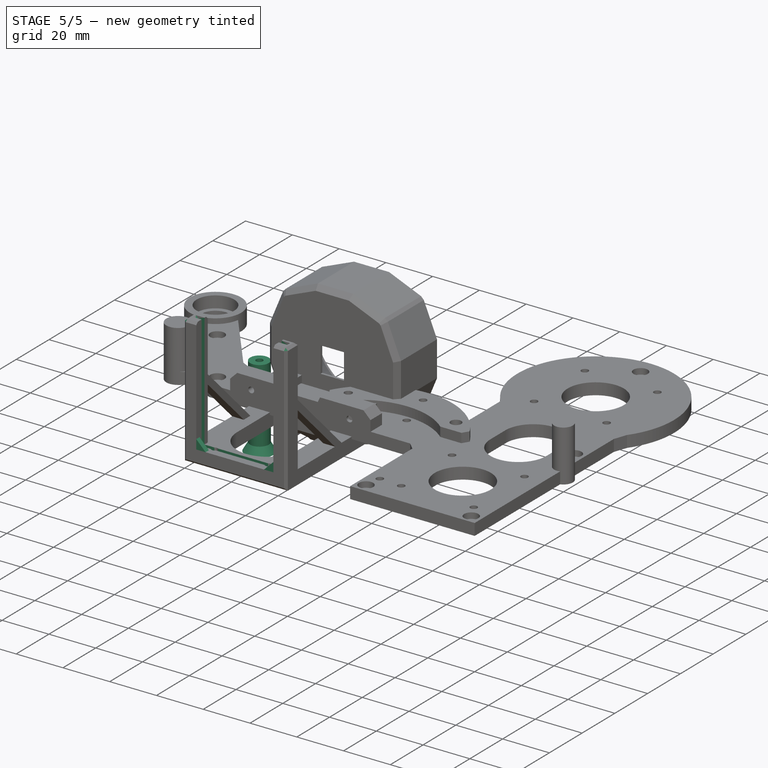
[diagram: stage 5 of 5 — iso view after this stage's code; geometry added in this stage tinted green]
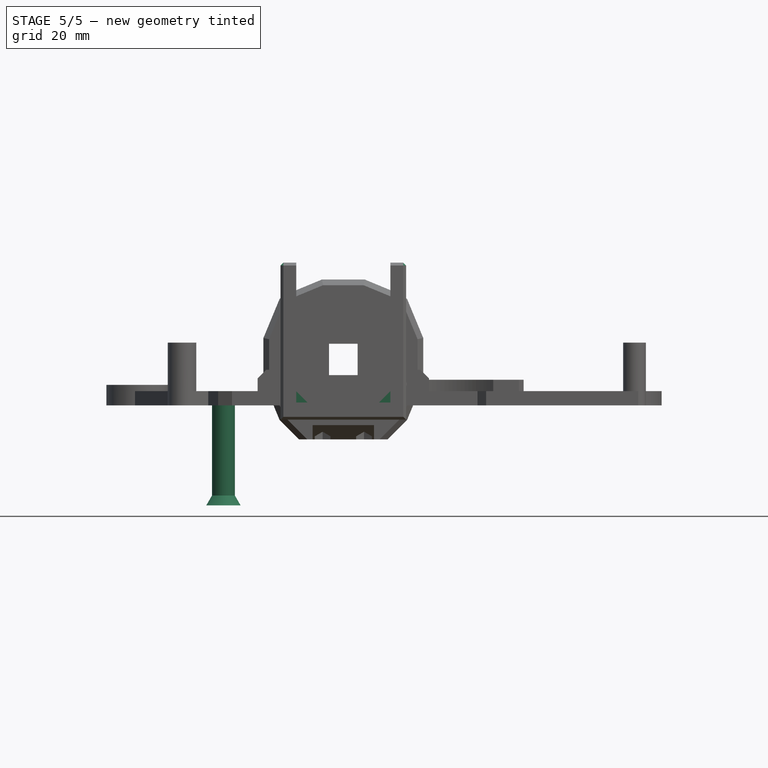
[diagram: stage 5 of 5 — front view after this stage's code; geometry added in this stage tinted green]
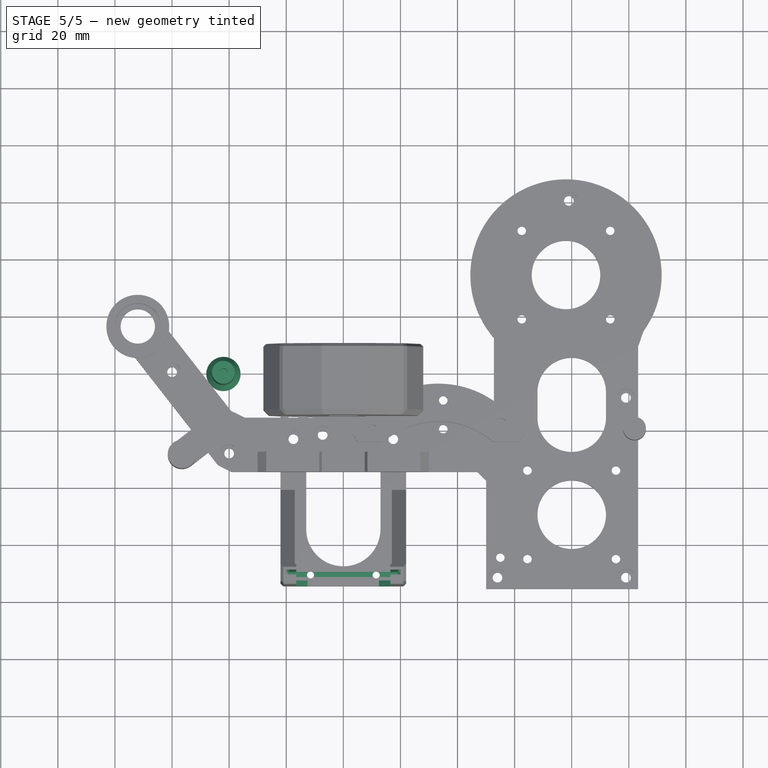
[diagram: stage 5 of 5 — top view after this stage's code; geometry added in this stage tinted green]
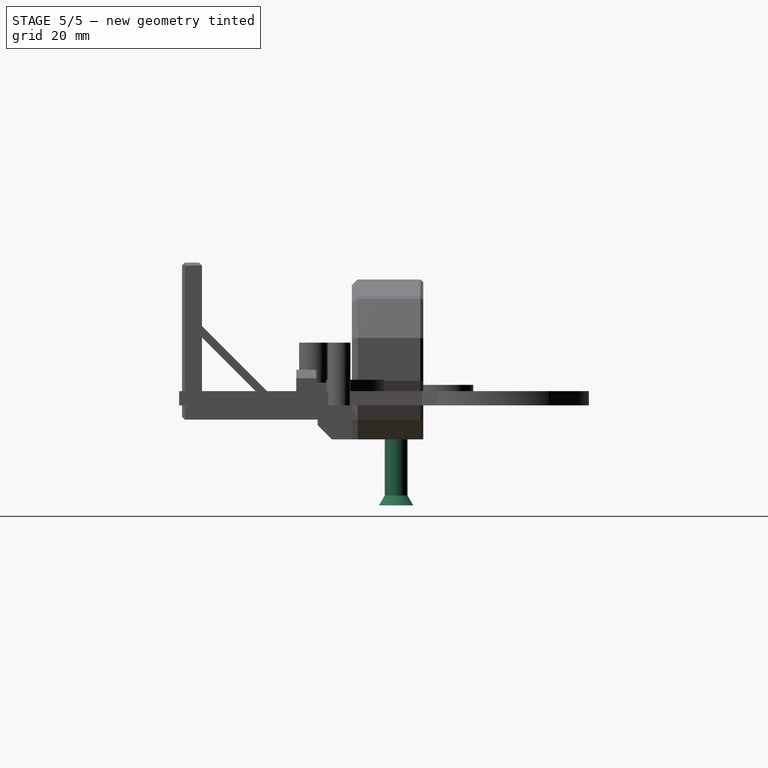
[diagram: stage 5 of 5 — right view after this stage's code; geometry added in this stage tinted green]
FEATURE [Sketcher::SketchObject] Sketch008
  AttachmentOffset = pos=(0,0,-35) rot=(0,0,1;0rad)
  FullyConstrained = true
  MapMode = 5
  Placement = pos=(0,0,-35) rot=(0,0,1;0rad)
  Support = -> [XY_Plane003]
  sketch-geometry (1):
    g0: Circle CenterX=-42 CenterY=20 CenterZ=0 NormalX=0 NormalY=0 NormalZ=1 AngleXU=0 Radius=4
  constraints (3):
    c: Diameter(g0) = 8
    c: DistanceX(g0,g-1) = 42
    c: DistanceY(g-1,g0) = 20
FEATURE [PartDesign::Pad] Pad005
  AddSubType = 0
  CheckUpToFaceLimits = true
  ClaimChildren = false
  Direction = (1,1,1)
  Fit = 0
  FitJoin = 0
  InnerFit = 0
  InnerFitJoin = 0
  InnerTaperAngle = 0
  InnerTaperAngleRev = 0
  Length = 35
  Length2 = 100
  Linearize = true
  NewSolid = false
  Profile = -> Sketch008
  Suppress = false
  Type = 0
  _ProfileBasedVersion = 1
FEATURE [Sketcher::SketchObject] Sketch009
  FullyConstrained = true
  MapMode = 5
  Support = -> [XY_Plane003]
  sketch-geometry (1):
    g0: Circle CenterX=-42 CenterY=20 CenterZ=0 NormalX=0 NormalY=0 NormalZ=1 AngleXU=0 Radius=1.5
  constraints (3):
    c: Diameter(g0) = 3
    c: DistanceX(g0,g-1) = 42
    c: DistanceY(g-1,g0) = 20
FEATURE [PartDesign::Hole] Hole002
  AddSubType = 1
  BaseFeature = -> Pad005
  ClaimChildren = false
  CustomThreadClearance = 0
  Depth = 12
  DepthType = 0
  Diameter = 2.9
  DrillForDepth = false
  DrillPoint = 0
  DrillPointAngle = 118
  Fit = 0
  FitJoin = 0
  HoleCutCountersinkAngle = 90
  HoleCutCustomValues = false
  HoleCutDepth = 0
  HoleCutDiameter = 6.1
  HoleCutType = 0
  InnerFit = 0
  InnerFitJoin = 0
  ModelThread = false
  NewSolid = false
  Profile = -> Sketch009
  Suppress = false
  Tapered = false
  TaperedAngle = 90
  ThreadClass = 0
  ThreadDepth = 12
  ThreadDepthType = 0
  ThreadDirection = 0
  ThreadFit = 0
  ThreadSize = 10
  ThreadType = 1
  Threaded = true
  UseCustomThreadClearance = false
  _ProfileBasedVersion = 1
FEATURE [Sketcher::SketchObject] Sketch010
  AttachmentOffset = pos=(0,0,-35) rot=(0,0,1;0rad)
  FullyConstrained = true
  MapMode = 5
  Placement = pos=(0,0,-35) rot=(0,0,1;0rad)
  Support = -> [XY_Plane003]
  sketch-geometry (1):
    g0: Circle CenterX=-42 CenterY=20 CenterZ=0 NormalX=0 NormalY=0 NormalZ=1 AngleXU=0 Radius=6
  constraints (3):
    c: Diameter(g0) = 12
    c: DistanceX(g0,g-1) = 42
    c: DistanceY(g-1,g0) = 20
FEATURE [PartDesign::Pad] Pad006
  AddSubType = 0
  BaseFeature = -> Hole002
  CheckUpToFaceLimits = true
  ClaimChildren = false
  Direction = (1,1,1)
  Fit = 0
  FitJoin = 0
  InnerFit = 0
  InnerFitJoin = 0
  InnerTaperAngle = 0
  InnerTaperAngleRev = 0
  Length = 5
  Length2 = 100
  Linearize = true
  NewSolid = false
  Profile = -> Sketch010
  Suppress = false
  TaperAngle = -30
  Type = 0
  _ProfileBasedVersion = 1
FEATURE [PartDesign::Pocket] Pocket
  AddSubType = 1
  BaseFeature = -> Pad010
  CheckUpToFaceLimits = true
  ClaimChildren = false
  Fit = 0
  FitJoin = 0
  InnerFit = 0
  InnerFitJoin = 0
  InnerTaperAngle = 0
  InnerTaperAngleRev = 0
  Length = 20
  Length2 = 100
  Linearize = true
  NewSolid = false
  Placement = pos=(0,0,-5) rot=(0,0,1;0rad)
  Profile = -> Sketch015
  Reversed = true
  Suppress = false
  Type = 0
  _ProfileBasedVersion = 1
  _Version = 1
FEATURE [Sketcher::SketchObject] Sketch017  label="pcb"
  AttachmentOffset = pos=(0,0,-2) rot=(0,0,1;0rad)
  FullyConstrained = true
  MapMode = 5
  Placement = pos=(0,0,-2) rot=(0,0,1;0rad)
  Support = -> [XY_Plane002]
  sketch-geometry (4):
    g0: LineSegment StartX=-19.15 StartY=-50 StartZ=0 EndX=19.15 EndY=-50 EndZ=0
    g1: LineSegment StartX=19.15 StartY=-50 StartZ=0 EndX=19.15 EndY=-51.75 EndZ=0
    g2: LineSegment StartX=19.15 StartY=-51.75 StartZ=0 EndX=-19.15 EndY=-51.75 EndZ=0
    g3: LineSegment StartX=-19.15 StartY=-51.75 StartZ=0 EndX=-19.15 EndY=-50 EndZ=0
  constraints (11):
    c: Coincident(g0,g1)
    c: Coincident(g1,g2)
    c: Coincident(g2,g3)
    c: Coincident(g3,g0)
    c: Horizontal(g2)
    c: Vertical(g1)
    c: Vertical(g3)
    c: Symmetric(g0,g0,g-2)
    c: DistanceX(g0,g0) = 38.3
    c: DistanceY(g1,g1) = 1.75
    c: DistanceY(g0,g-1) = 50
FEATURE [PartDesign::Pocket] Pocket001  label="pkt_pcb"
  AddSubType = 1
  BaseFeature = -> Pocket
  CheckUpToFaceLimits = true
  ClaimChildren = false
  Fit = 0
  FitJoin = 0
  InnerFit = 0
  InnerFitJoin = 0
  InnerTaperAngle = 0
  InnerTaperAngleRev = 0
  Length = 60
  Length2 = 100
  Linearize = true
  NewSolid = false
  Placement = pos=(0,0,-5) rot=(0,0,1;0rad)
  Profile = -> Sketch017
  Reversed = true
  Suppress = false
  Type = 0
  _ProfileBasedVersion = 1
  _Version = 1
FEATURE [PartDesign::Chamfer] Chamfer003
  AddSubType = 0
  Angle = 45
  Base = -> Pocket001 [Edge65,Edge163,Edge165,Edge186,Edge194,Edge162,Edge149,Edge191,Edge187,Edge135,Edge195,Edge193,Edge11]
  BaseFeature = -> Pocket001
  ChamferType = 0
  FlipDirection = false
  NewSolid = false
  Placement = pos=(0,0,-5) rot=(0,0,1;0rad)
  Size = 1
  Size2 = 1
  SupportTransform = false
  Suppress = false
FEATURE [Sketcher::SketchObject] Sketch018
  AttachmentOffset = pos=(0,0,54) rot=(0,0,1;0rad)
  FullyConstrained = true
  MapMode = 5
  Placement = pos=(0,-54,-1.2e-14) rot=(1,0,0;1.5708rad)
  Support = -> [XZ_Plane002]
  sketch-geometry (6):
    g0: LineSegment StartX=-16.5 StartY=0 StartZ=0 EndX=-16.5 EndY=5 EndZ=0
    g1: LineSegment StartX=-16.5 StartY=5 StartZ=0 EndX=-11.5 EndY=0 EndZ=0
    g2: LineSegment StartX=-16.5 StartY=0 StartZ=0 EndX=-11.5 EndY=0 EndZ=0
    g3: LineSegment StartX=16.5 StartY=0 StartZ=0 EndX=16.5 EndY=5 EndZ=0
    g4: LineSegment StartX=16.5 StartY=0 StartZ=0 EndX=11.5 EndY=0 EndZ=0
    g5: LineSegment StartX=11.5 StartY=0 StartZ=0 EndX=16.5 EndY=5 EndZ=0
  constraints (17):
    c: PointOnObject(g0,g-1)
    c: Vertical(g0)
    c: Coincident(g1,g0)
    c: PointOnObject(g1,g-1)
    c: Coincident(g2,g0)
    c: Coincident(g2,g1)
    c: Vertical(g3)
    c: Coincident(g4,g3)
    c: PointOnObject(g4,g-1)
    c: Coincident(g5,g4)
    c: Coincident(g5,g3)
    c: Horizontal(g0,g3)
    c: Symmetric(g0,g3,g-2)
    c: DistanceX(g0,g3) = 33
    c: Equal(g2,g4)
    c: DistanceX(g2,g2) = 5
    c: DistanceY(g3,g3) = 5
FEATURE [PartDesign::Pad] Pad011
  AddSubType = 0
  BaseFeature = -> Chamfer003
  CheckUpToFaceLimits = true
  ClaimChildren = false
  Direction = (1,1,1)
  Fit = 0
  FitJoin = 0
  InnerFit = 0
  InnerFitJoin = 0
  InnerTaperAngle = 0
  InnerTaperAngleRev = 0
  Length = 2
  Length2 = 100
  Linearize = true
  Midplane = true
  NewSolid = false
  Placement = pos=(0,0,-5) rot=(0,0,1;0rad)
  Profile = -> Sketch018
  Suppress = false
  Type = 0
  _ProfileBasedVersion = 1
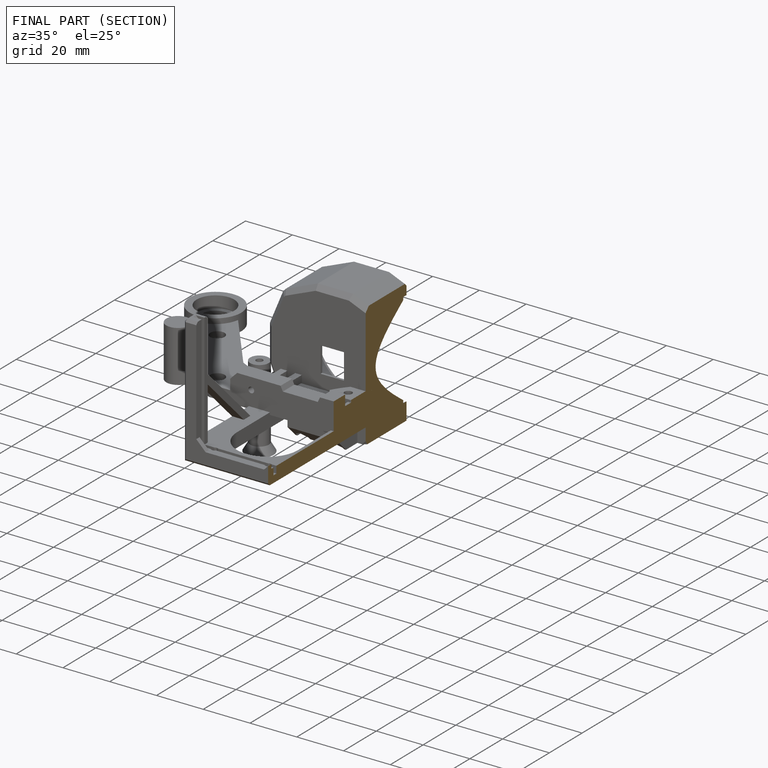
[diagram: finished part — half-section view (interior)]
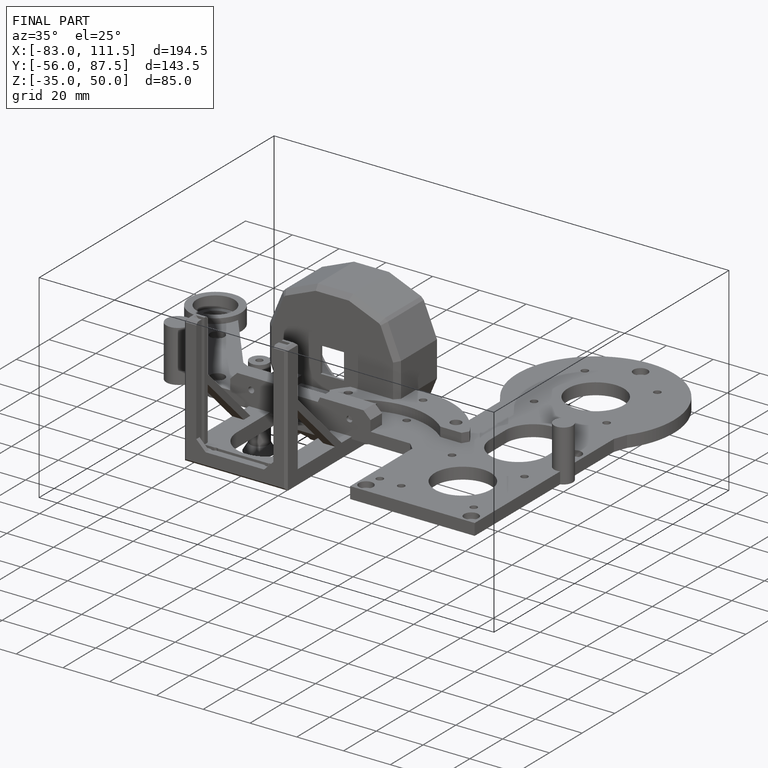
[diagram: finished part — iso view with bounding-box wireframe]
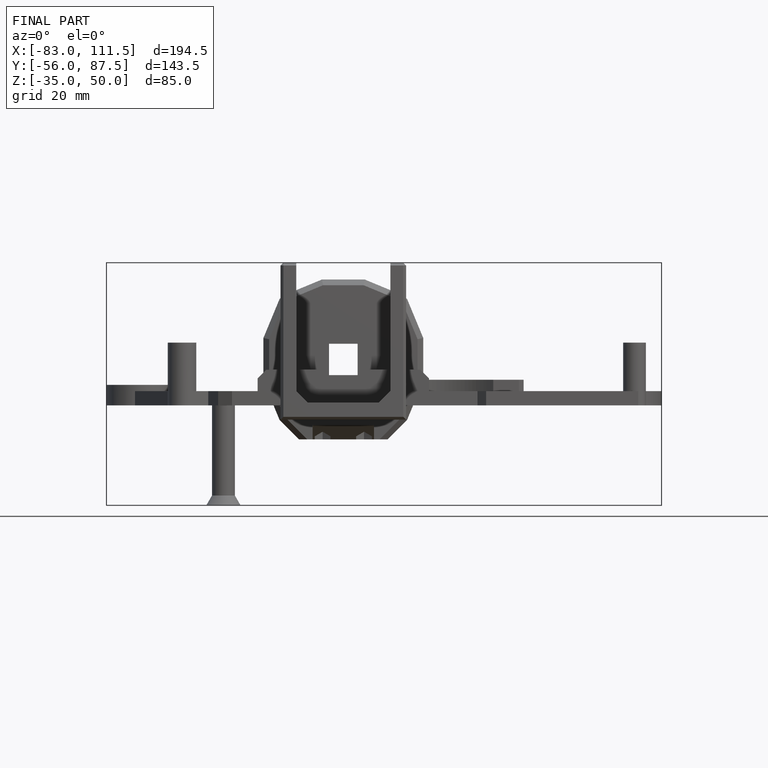
[diagram: finished part — front view with bounding-box wireframe]
